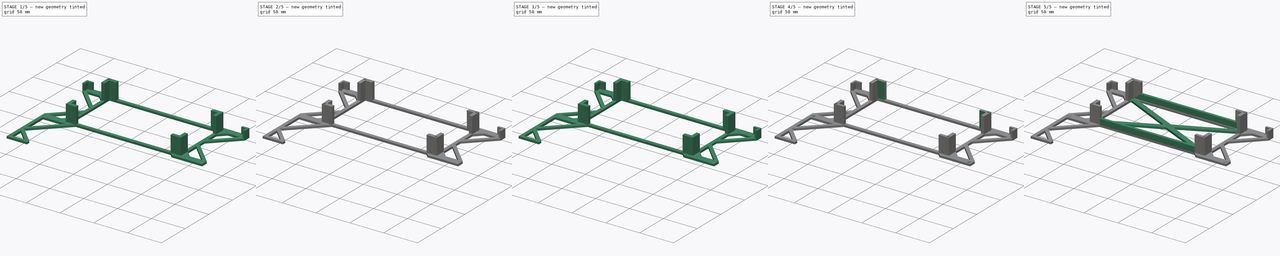
[diagram: build sequence overview — one tinted view per stage of 5, left to right]
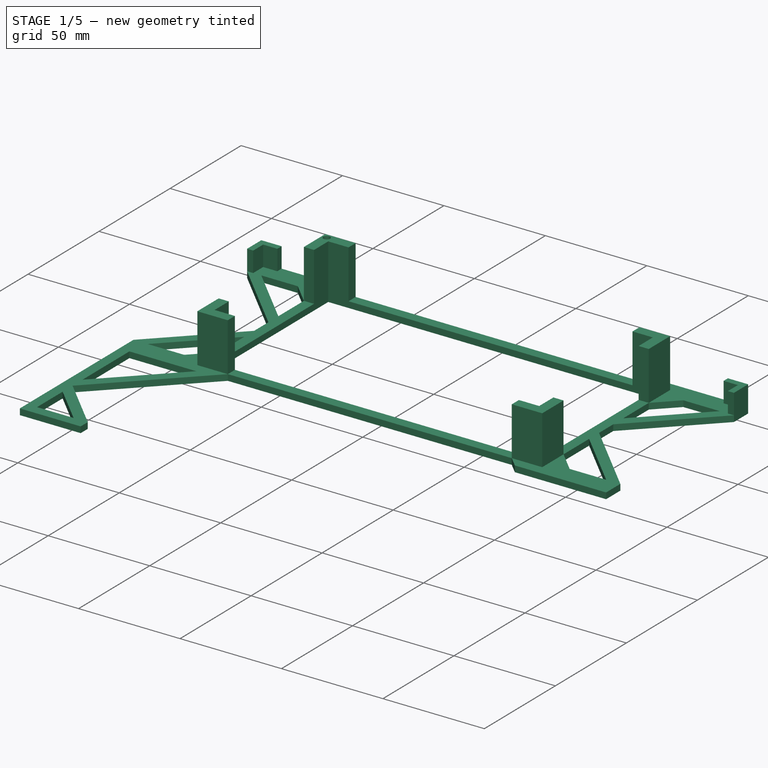
[diagram: stage 1 of 5 — iso view after this stage's code; geometry added in this stage tinted green]
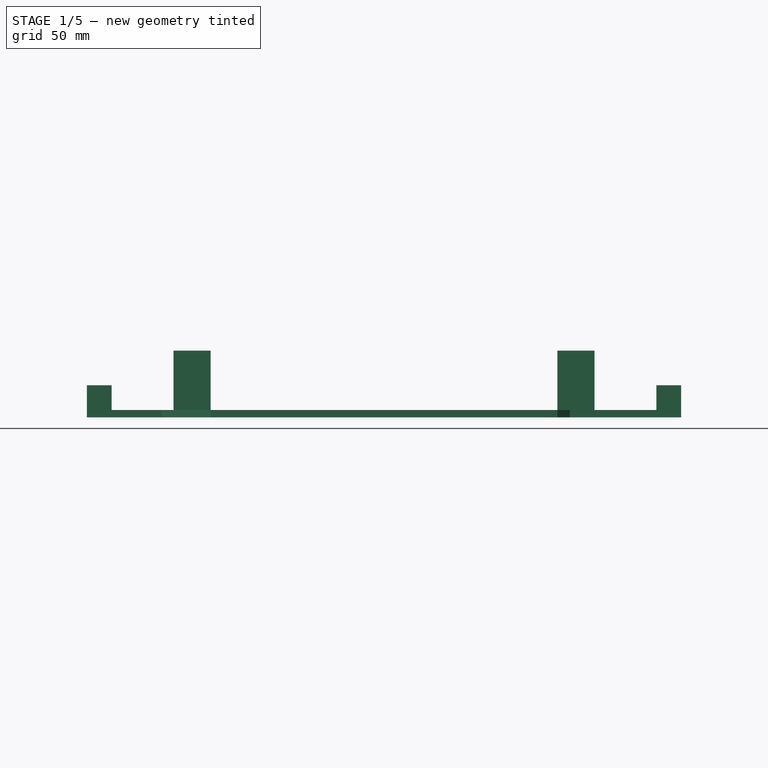
[diagram: stage 1 of 5 — front view after this stage's code; geometry added in this stage tinted green]
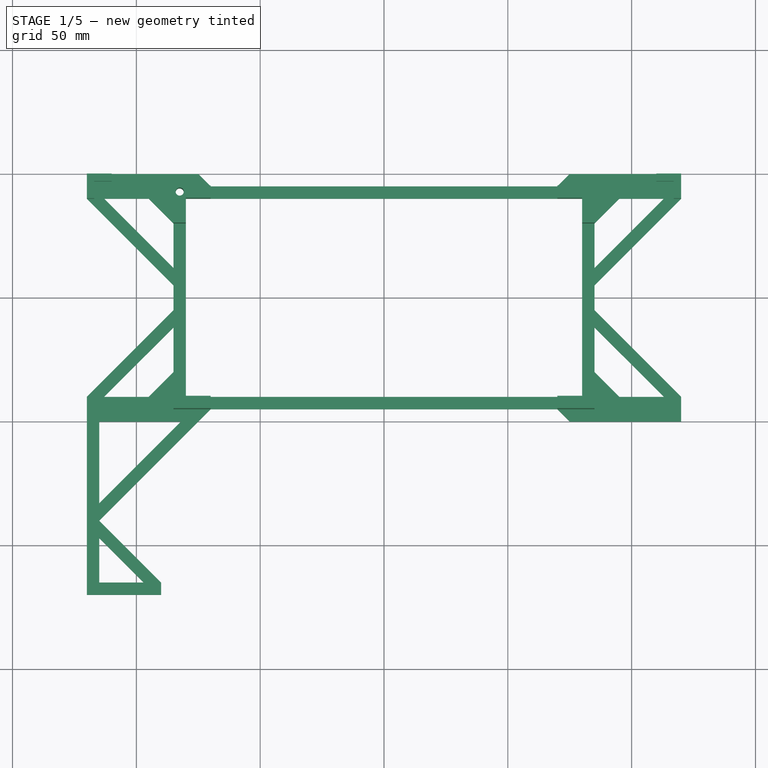
[diagram: stage 1 of 5 — top view after this stage's code; geometry added in this stage tinted green]
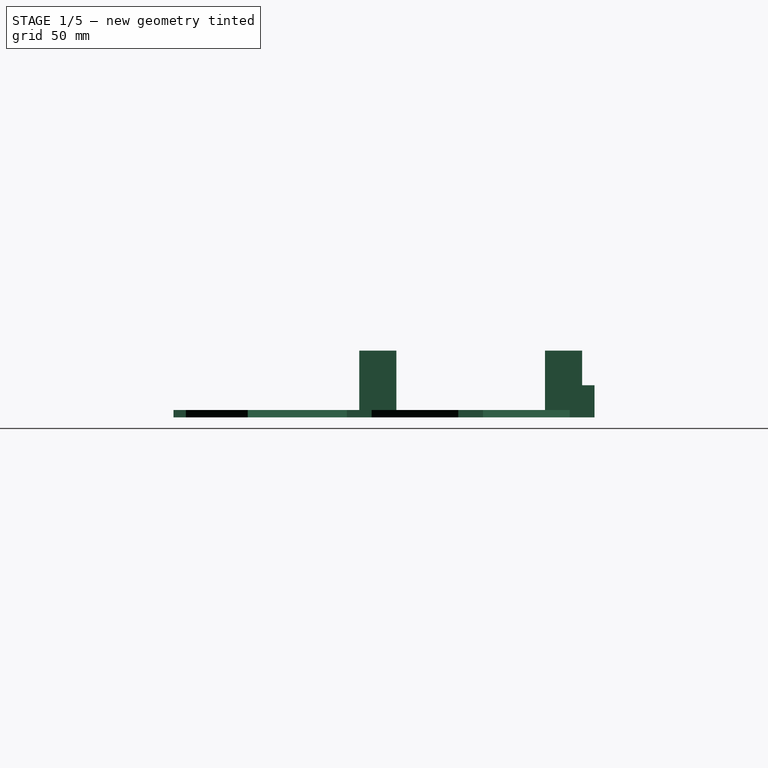
[diagram: stage 1 of 5 — right view after this stage's code; geometry added in this stage tinted green]
FCSTD DOCUMENT  (FreeCAD 0.18R4 (GitTag))
Label: Box_frame_bottom_V3
License: All rights reserved
LicenseURL: http://en.wikipedia.org/wiki/All_rights_reserved
objects: Sketcher::SketchObject×29, PartDesign::Fillet×17, PartDesign::Pad×14, PartDesign::Pocket×8, PartDesign::Hole×4, PartDesign::Body×2, PartDesign::Chamfer×1
note: 101 computed .brp shape members not serialized (recipe doc carries the construction recipe); baked Part::Feature solids carry a one-line shape summary decoded from their .brp

FEATURE [Sketcher::SketchObject] Sketch001
  MapMode = 2
  sketch-geometry (58):
    g0: LineSegment StartX=-80 StartY=40 StartZ=0 EndX=80 EndY=40 EndZ=0
    g1: LineSegment StartX=80 StartY=40 StartZ=0 EndX=80 EndY=-40 EndZ=0
    g2: LineSegment StartX=80 StartY=-40 StartZ=0 EndX=-80 EndY=-40 EndZ=0
    g3: LineSegment StartX=-80 StartY=-40 StartZ=0 EndX=-80 EndY=40 EndZ=0
    g4: LineSegment StartX=-85 StartY=45 StartZ=0 EndX=85 EndY=45 EndZ=0
    g5: LineSegment StartX=85 StartY=45 StartZ=0 EndX=85 EndY=-45 EndZ=0
    g6: LineSegment StartX=85 StartY=-45 StartZ=0 EndX=-85 EndY=-45 EndZ=0
    g7: LineSegment StartX=-85 StartY=-45 StartZ=0 EndX=-85 EndY=45 EndZ=0
    g8: LineSegment StartX=-70 StartY=45 StartZ=0 EndX=-75 EndY=50 EndZ=0
    g9: LineSegment StartX=-120 StartY=50 StartZ=0 EndX=-75 EndY=50 EndZ=0
    g10: LineSegment StartX=-120 StartY=50 StartZ=0 EndX=-120 EndY=40 EndZ=0
    g11: LineSegment StartX=-120 StartY=40 StartZ=0 EndX=-85 EndY=5 EndZ=0
    g12: LineSegment StartX=-113 StartY=40 StartZ=0 EndX=-95 EndY=40 EndZ=0
    g13: LineSegment StartX=-113 StartY=40 StartZ=0 EndX=-85 EndY=12 EndZ=0
    g14: LineSegment StartX=-95 StartY=40 StartZ=0 EndX=-85 EndY=30 EndZ=0
    g15: LineSegment StartX=-85 StartY=30 StartZ=0 EndX=-80 EndY=30 EndZ=0
    g16: LineSegment StartX=-70 StartY=45 StartZ=0 EndX=-70 EndY=40 EndZ=0
    g17: Circle CenterX=-82.5 CenterY=42.5 CenterZ=0 NormalX=0 NormalY=0 NormalZ=1 AngleXU=0 Radius=0.9
    g18: LineSegment StartX=70 StartY=45 StartZ=0 EndX=75 EndY=50 EndZ=0
    g19: LineSegment StartX=120 StartY=50 StartZ=0 EndX=75 EndY=50 EndZ=0
    g20: LineSegment StartX=120 StartY=50 StartZ=0 EndX=120 EndY=40 EndZ=0
    g21: LineSegment StartX=120 StartY=40 StartZ=0 EndX=85 EndY=5 EndZ=0
    g22: LineSegment StartX=113 StartY=40 StartZ=0 EndX=95 EndY=40 EndZ=0
    g23: LineSegment StartX=113 StartY=40 StartZ=0 EndX=85 EndY=12 EndZ=0
    g24: LineSegment StartX=95 StartY=40 StartZ=0 EndX=85 EndY=30 EndZ=0
    g25: LineSegment StartX=85 StartY=30 StartZ=0 EndX=80 EndY=30 EndZ=0
    g26: LineSegment StartX=70 StartY=45 StartZ=0 EndX=70 EndY=40 EndZ=0
    g27: Circle CenterX=82.5 CenterY=42.5 CenterZ=0 NormalX=0 NormalY=0 NormalZ=1 AngleXU=0 Radius=0.9
    g28: LineSegment StartX=70 StartY=-45 StartZ=0 EndX=75 EndY=-50 EndZ=0
    g29: LineSegment StartX=120 StartY=-50 StartZ=0 EndX=75 EndY=-50 EndZ=0
    g30: LineSegment StartX=120 StartY=-50 StartZ=0 EndX=120 EndY=-40 EndZ=0
    g31: LineSegment StartX=120 StartY=-40 StartZ=0 EndX=85 EndY=-5 EndZ=0
    g32: LineSegment StartX=113 StartY=-40 StartZ=0 EndX=95 EndY=-40 EndZ=0
    g33: LineSegment StartX=113 StartY=-40 StartZ=0 EndX=85 EndY=-12 EndZ=0
    g34: LineSegment StartX=95 StartY=-40 StartZ=0 EndX=85 EndY=-30 EndZ=0
    g35: LineSegment StartX=85 StartY=-30 StartZ=0 EndX=80 EndY=-30 EndZ=0
    g36: LineSegment StartX=70 StartY=-45 StartZ=0 EndX=70 EndY=-40 EndZ=0
    g37: Circle CenterX=82.5 CenterY=-42.5 CenterZ=0 NormalX=0 NormalY=0 NormalZ=1 AngleXU=0 Radius=0.9
    g38: LineSegment StartX=-70 StartY=-45 StartZ=0 EndX=-75 EndY=-50 EndZ=0
    g39: LineSegment StartX=-120 StartY=-50 StartZ=0 EndX=-75 EndY=-50 EndZ=0
    g40: LineSegment StartX=-120 StartY=-50 StartZ=0 EndX=-120 EndY=-40 EndZ=0
    g41: LineSegment StartX=-120 StartY=-40 StartZ=0 EndX=-85 EndY=-5 EndZ=0
    g42: LineSegment StartX=-113 StartY=-40 StartZ=0 EndX=-95 EndY=-40 EndZ=0
    g43: LineSegment StartX=-113 StartY=-40 StartZ=0 EndX=-85 EndY=-12 EndZ=0
    g44: LineSegment StartX=-95 StartY=-40 StartZ=0 EndX=-85 EndY=-30 EndZ=0
    g45: LineSegment StartX=-85 StartY=-30 StartZ=0 EndX=-80 EndY=-30 EndZ=0
    g46: LineSegment StartX=-70 StartY=-45 StartZ=0 EndX=-70 EndY=-40 EndZ=0
    g47: Circle CenterX=-82.5 CenterY=-42.5 CenterZ=0 NormalX=0 NormalY=0 NormalZ=1 AngleXU=0 Radius=0.9
    g48: LineSegment StartX=-120 StartY=-50 StartZ=0 EndX=-120 EndY=-120 EndZ=0
    g49: LineSegment StartX=-120 StartY=-120 StartZ=0 EndX=-90 EndY=-120 EndZ=0
    g50: LineSegment StartX=-90 StartY=-120 StartZ=0 EndX=-90 EndY=-115 EndZ=0
    g51: LineSegment StartX=-90 StartY=-115 StartZ=0 EndX=-115 EndY=-90 EndZ=0
    g52: LineSegment StartX=-115 StartY=-90 StartZ=0 EndX=-75 EndY=-50 EndZ=0
    g53: LineSegment StartX=-115 StartY=-50 StartZ=0 EndX=-115 EndY=-83 EndZ=0
    g54: LineSegment StartX=-115 StartY=-97 StartZ=0 EndX=-115 EndY=-115 EndZ=0
    g55: LineSegment StartX=-115 StartY=-115 StartZ=0 EndX=-97 EndY=-115 EndZ=0
    g56: LineSegment StartX=-97 StartY=-115 StartZ=0 EndX=-115 EndY=-97 EndZ=0
    g57: LineSegment StartX=-115 StartY=-83 StartZ=0 EndX=-82 EndY=-50 EndZ=0
  constraints (182):
    c: Coincident(g0,g1)
    c: Coincident(g1,g2)
    c: Coincident(g2,g3)
    c: Coincident(g3,g0)
    c: Horizontal(g0)
    c: Horizontal(g2)
    c: Vertical(g1)
    c: Vertical(g3)
    c: DistanceX(g0,g0) = 160
    c: DistanceY(g3,g3) = 80
    c: Distance(g-1,g1) = 80
    c: Distance(g-1,g0) = 40
    c: Coincident(g4,g5)
    c: Coincident(g5,g6)
    c: Coincident(g6,g7)
    c: Coincident(g7,g4)
    c: Horizontal(g4)
    c: Horizontal(g6)
    c: Vertical(g5)
    c: Vertical(g7)
    c: DistanceX(g6,g5) = 170
    c: DistanceY(g5,g4) = 90
    c: Distance(g-1,g5) = 85
    c: Distance(g-1,g4) = 45
    c: PointOnObject(g8,g4)
    c: Coincident(g8,g9)
    c: DistanceY(g4,g8) = 5
    c: DistanceX(g8,g8) = 5
    c: DistanceX(g9,g4) = 35
    c: DistanceX(g4,g8) = 15
    c: DistanceY(g4,g9) = 5
    c: Coincident(g9,g10)
    c: DistanceY(g10,g9) = 10
    c: DistanceX(g10,g4) = 35
    c: Coincident(g11,g10)
    c: PointOnObject(g11,g7)
    c: DistanceY(g11,g4) = 40
    c: DistanceY(g12,g8) = 10
    c: Parallel(g9,g12)
    c: DistanceX(g12,g4) = 10
    c: DistanceX(g10,g12) = 7
    c: Coincident(g13,g12)
    c: Coincident(g14,g12)
    c: PointOnObject(g14,g7)
    c: PointOnObject(g13,g7)
    c: DistanceY(g11,g13) = 7
    c: DistanceY(g14,g12) = 10
    c: Coincident(g15,g14)
    c: PointOnObject(g15,g3)
    c: DistanceY(g15,g0) = 10
    c: Coincident(g16,g8)
    c: DistanceX(g0,g16) = 10
    c: PointOnObject(g16,g0)
    c: DistanceX(g4,g17) = 2.5
    c: DistanceY(g0,g17) = 2.5
    c: Radius(g17) = 0.9  'ra'
    c: Coincident(g18,g19)
    c: Coincident(g19,g20)
    c: Coincident(g21,g20)
    c: Parallel(g19,g22)
    c: Coincident(g23,g22)
    c: Coincident(g24,g22)
    c: Coincident(g25,g24)
    c: Coincident(g26,g18)
    c: Radius(g27) = 0.9  'ra'
    c: PointOnObject(g26,g0)
    c: PointOnObject(g18,g4)
    c: DistanceX(g18,g4) = 15
    c: DistanceX(g26,g0) = 10
    c: DistanceX(g18,g4) = 10
    c: DistanceX(g4,g19) = 35
    c: DistanceX(g4,g22) = 10
    c: DistanceX(g4,g22) = 28
    c: DistanceX(g0,g24) = 5
    c: DistanceY(g24,g0) = 10
    c: DistanceY(g25,g0) = 10
    c: DistanceY(g23,g0) = 28
    c: DistanceY(g21,g0) = 35
    c: DistanceY(g20,g19) = 10
    c: DistanceY(g22,g19) = 10
    c: DistanceY(g4,g18) = 5
    c: DistanceY(g22,g18) = 10
    c: PointOnObject(g25,g1)
    c: PointOnObject(g23,g5)
    c: PointOnObject(g21,g5)
    c: DistanceX(g4,g20) = 35
    c: DistanceX(g27,g4) = 2.5
    c: DistanceY(g0,g27) = 2.5
    c: Coincident(g28,g29)
    c: Coincident(g29,g30)
    c: Coincident(g31,g30)
    c: Parallel(g29,g32)
    c: Coincident(g33,g32)
    c: Coincident(g34,g32)
    c: Coincident(g35,g34)
    c: Coincident(g36,g28)
    c: Radius(g37) = 0.9  'ra'
    c: PointOnObject(g31,g5)
    c: PointOnObject(g33,g5)
    c: PointOnObject(g34,g5)
    c: PointOnObject(g35,g1)
    c: PointOnObject(g36,g2)
    c: PointOnObject(g28,g6)
    c: DistanceX(g5,g32) = 10
    c: DistanceX(g5,g32) = 28
    c: DistanceX(g5,g30) = 35
    c: DistanceX(g5,g29) = 35
    c: DistanceX(g28,g5) = 10
    c: DistanceX(g28,g5) = 15
    c: DistanceX(g36,g5) = 15
    c: DistanceY(g28,g5) = 5
    c: DistanceY(g5,g32) = 5
    c: DistanceY(g5,g34) = 15
    c: DistanceY(g5,g35) = 15
    c: DistanceY(g5,g33) = 33
    c: DistanceY(g5,g31) = 40
    c: DistanceY(g5,g32) = 5
    c: DistanceY(g5,g30) = 5
    c: DistanceY(g5,g37) = 2.5
    c: DistanceX(g1,g37) = 2.5
    c: Coincident(g38,g39)
    c: Coincident(g39,g40)
    c: Coincident(g41,g40)
    c: Parallel(g39,g42)
    c: Coincident(g43,g42)
    c: Coincident(g44,g42)
    c: Coincident(g45,g44)
    c: Coincident(g46,g38)
    c: Radius(g47) = 0.9  'ra'
    c: PointOnObject(g41,g7)
    c: PointOnObject(g43,g7)
    c: PointOnObject(g44,g7)
    c: PointOnObject(g45,g3)
    c: PointOnObject(g46,g2)
    c: PointOnObject(g38,g6)
    c: DistanceX(g6,g38) = 15
    c: DistanceX(g6,g46) = 15
    c: DistanceX(g6,g38) = 10
    c: DistanceX(g39,g6) = 35
    c: DistanceX(g42,g6) = 10
    c: DistanceX(g42,g6) = 28
    c: DistanceX(g40,g6) = 35
    c: DistanceY(g6,g44) = 15
    c: DistanceY(g6,g45) = 15
    c: DistanceY(g6,g41) = 40
    c: DistanceY(g6,g43) = 33
    c: DistanceY(g6,g42) = 5
    c: DistanceY(g39,g2) = 10
    c: DistanceY(g6,g40) = 5
    c: DistanceY(g6,g47) = 2.5
    c: DistanceY(g38,g6) = 5
    c: DistanceX(g47,g2) = 2.5
    c: Coincident(g48,g39)
    c: DistanceY(g48,g39) = 70
    c: DistanceX(g48,g6) = 35
    c: Coincident(g49,g48)
    c: DistanceX(g48,g49) = 30
    c: DistanceY(g49,g6) = 75
    c: Coincident(g50,g49)
    c: Coincident(g50,g51)
    c: Coincident(g51,g52)
    c: Coincident(g52,g38)
    c: DistanceX(g48,g50) = 30
    c: DistanceY(g49,g50) = 5
    c: DistanceY(g48,g51) = 30
    c: DistanceX(g48,g51) = 5
    c: Coincident(g54,g55)
    c: Coincident(g55,g56)
    c: Coincident(g54,g56)
    c: Parallel(g48,g53)
    c: Parallel(g54,g48)
    c: Parallel(g56,g51)
    c: Parallel(g55,g49)
    c: DistanceX(g39,g53) = 5
    c: DistanceX(g48,g54) = 5
    c: DistanceX(g55,g49) = 7
    c: DistanceY(g51,g53) = 7
    c: DistanceY(g49,g55) = 5
    c: PointOnObject(g53,g39)
    c: PointOnObject(g57,g39)
    c: Coincident(g57,g53)
    c: DistanceX(g57,g38) = 7
FEATURE [Sketcher::SketchObject] Sketch002
  MapMode = 5
  Support = -> [XY_Plane001]
FEATURE [Sketcher::SketchObject] Sketch003
  MapMode = 5
  Support = -> [XY_Plane]
  sketch-geometry (8):
    g0: LineSegment StartX=-80 StartY=40 StartZ=0 EndX=80 EndY=40 EndZ=0
    g1: LineSegment StartX=80 StartY=40 StartZ=0 EndX=80 EndY=-40 EndZ=0
    g2: LineSegment StartX=80 StartY=-40 StartZ=0 EndX=-80 EndY=-40 EndZ=0
    g3: LineSegment StartX=-80 StartY=-40 StartZ=0 EndX=-80 EndY=40 EndZ=0
    g4: LineSegment StartX=-85 StartY=45 StartZ=0 EndX=85 EndY=45 EndZ=0
    g5: LineSegment StartX=85 StartY=45 StartZ=0 EndX=85 EndY=-45 EndZ=0
    g6: LineSegment StartX=85 StartY=-45 StartZ=0 EndX=-85 EndY=-45 EndZ=0
    g7: LineSegment StartX=-85 StartY=-45 StartZ=0 EndX=-85 EndY=45 EndZ=0
  constraints (24):
    c: Coincident(g0,g1)
    c: Coincident(g1,g2)
    c: Coincident(g2,g3)
    c: Coincident(g3,g0)
    c: Horizontal(g0)
    c: Horizontal(g2)
    c: Vertical(g1)
    c: Vertical(g3)
    c: Coincident(g4,g5)
    c: Coincident(g5,g6)
    c: Coincident(g6,g7)
    c: Coincident(g7,g4)
    c: Horizontal(g4)
    c: Horizontal(g6)
    c: Vertical(g5)
    c: Vertical(g7)
    c: DistanceX(g-1,g1) = 80
    c: DistanceX(g0,g0) = 160
    c: DistanceY(g1,g-1) = 40
    c: DistanceY(g1,g0) = 80
    c: DistanceY(g-1,g4) = 45
    c: DistanceY(g6,g4) = 90
    c: DistanceX(g6,g-1) = 85
    c: DistanceX(g-1,g5) = 85
FEATURE [PartDesign::Pad] Pad
  Length = 3
  Length2 = 100
  Profile = -> Sketch003
  Type = 0
FEATURE [Sketcher::SketchObject] Sketch005
  sketch-geometry (10):
    g0: LineSegment StartX=-70 StartY=45 StartZ=0 EndX=-75 EndY=50 EndZ=0
    g1: LineSegment StartX=-120 StartY=50 StartZ=0 EndX=-75 EndY=50 EndZ=0
    g2: LineSegment StartX=-120 StartY=50 StartZ=0 EndX=-120 EndY=40 EndZ=0
    g3: LineSegment StartX=-120 StartY=40 StartZ=0 EndX=-85 EndY=5 EndZ=0
    g4: LineSegment StartX=-113 StartY=40 StartZ=0 EndX=-95 EndY=40 EndZ=0
    g5: LineSegment StartX=-113 StartY=40 StartZ=0 EndX=-85 EndY=12 EndZ=0
    g6: LineSegment StartX=-95 StartY=40 StartZ=0 EndX=-85 EndY=30 EndZ=0
    g7: LineSegment StartX=-85 StartY=12 StartZ=0 EndX=-85 EndY=5 EndZ=0
    g8: LineSegment StartX=-85 StartY=30 StartZ=0 EndX=-85 EndY=45 EndZ=0
    g9: LineSegment StartX=-85 StartY=45 StartZ=0 EndX=-70 EndY=45 EndZ=0
  constraints (30):
    c: Coincident(g0,g1)
    c: DistanceX(g0,g0) = 5
    c: Coincident(g1,g2)
    c: DistanceY(g2,g1) = 10
    c: Coincident(g3,g2)
    c: DistanceY(g4,g0) = 10
    c: Parallel(g1,g4)
    c: DistanceX(g2,g4) = 7
    c: Coincident(g5,g4)
    c: Coincident(g6,g4)
    c: DistanceY(g3,g5) = 7
    c: DistanceY(g6,g4) = 10
    c: Coincident(g8,g9)
    c: Coincident(g9,g0)
    c: Coincident(g8,g6)
    c: Coincident(g5,g7)
    c: Coincident(g3,g7)
    c: DistanceX(g4,g6) = 10
    c: DistanceX(g2,g8) = 35
    c: DistanceX(g8,g0) = 15
    c: DistanceX(g2,g4) = 25
    c: DistanceX(g1,g-1) = 120
    c: DistanceX(g2,g-1) = 120
    c: DistanceY(g-1,g1) = 50
    c: DistanceY(g-1,g0) = 50
    c: DistanceY(g-1,g3) = 5
    c: DistanceX(g5,g-1) = 85
    c: DistanceX(g3,g-1) = 85
    c: DistanceY(g8,g0) = 5
    c: DistanceY(g0,g0) = 5
FEATURE [PartDesign::Pad] Pad001
  BaseFeature = -> Pad
  Length = 3
  Length2 = 100
  Profile = -> Sketch005
  Type = 0
FEATURE [Sketcher::SketchObject] Sketch007
  MapMode = 2
  sketch-geometry (10):
    g0: LineSegment StartX=70 StartY=45 StartZ=0 EndX=75 EndY=50 EndZ=0
    g1: LineSegment StartX=120 StartY=50 StartZ=0 EndX=75 EndY=50 EndZ=0
    g2: LineSegment StartX=120 StartY=50 StartZ=0 EndX=120 EndY=40 EndZ=0
    g3: LineSegment StartX=120 StartY=40 StartZ=0 EndX=85 EndY=5 EndZ=0
    g4: LineSegment StartX=113 StartY=40 StartZ=0 EndX=95 EndY=40 EndZ=0
    g5: LineSegment StartX=113 StartY=40 StartZ=0 EndX=85 EndY=12 EndZ=0
    g6: LineSegment StartX=95 StartY=40 StartZ=0 EndX=85 EndY=30 EndZ=0
    g7: LineSegment StartX=70 StartY=45 StartZ=0 EndX=85 EndY=45 EndZ=0
    g8: LineSegment StartX=85 StartY=45 StartZ=0 EndX=85 EndY=30 EndZ=0
    g9: LineSegment StartX=85 StartY=12 StartZ=0 EndX=85 EndY=5 EndZ=0
  constraints (30):
    c: Coincident(g0,g1)
    c: Coincident(g1,g2)
    c: Coincident(g3,g2)
    c: Parallel(g1,g4)
    c: Coincident(g5,g4)
    c: Coincident(g6,g4)
    c: DistanceY(g2,g1) = 10
    c: DistanceY(g4,g1) = 10
    c: DistanceY(g4,g0) = 10
    c: Coincident(g7,g8)
    c: Coincident(g6,g8)
    c: Coincident(g0,g7)
    c: Coincident(g5,g9)
    c: Coincident(g3,g9)
    c: DistanceY(g-1,g1) = 50
    c: DistanceX(g-1,g1) = 120
    c: DistanceX(g0,g1) = 45
    c: DistanceX(g6,g1) = 35
    c: DistanceX(g4,g1) = 25
    c: DistanceX(g4,g1) = 7
    c: DistanceX(g5,g1) = 35
    c: DistanceX(g3,g1) = 35
    c: DistanceX(g0,g1) = 50
    c: DistanceX(g7,g1) = 35
    c: DistanceY(g7,g0) = 5
    c: DistanceY(g0,g0) = 5
    c: DistanceY(g5,g4) = 28
    c: DistanceY(g3,g4) = 35
    c: DistanceY(g5,g6) = 18
    c: DistanceX(g4,g2) = 7
FEATURE [PartDesign::Pad] Pad002
  BaseFeature = -> Pad001
  Length = 3
  Length2 = 100
  Profile = -> Sketch007
  Type = 0
FEATURE [Sketcher::SketchObject] Sketch008
  MapMode = 2
  sketch-geometry (10):
    g0: LineSegment StartX=70 StartY=-45 StartZ=0 EndX=75 EndY=-50 EndZ=0
    g1: LineSegment StartX=120 StartY=-50 StartZ=0 EndX=75 EndY=-50 EndZ=0
    g2: LineSegment StartX=120 StartY=-50 StartZ=0 EndX=120 EndY=-40 EndZ=0
    g3: LineSegment StartX=120 StartY=-40 StartZ=0 EndX=85 EndY=-5 EndZ=0
    g4: LineSegment StartX=113 StartY=-40 StartZ=0 EndX=95 EndY=-40 EndZ=0
    g5: LineSegment StartX=113 StartY=-40 StartZ=0 EndX=85 EndY=-12 EndZ=0
    g6: LineSegment StartX=95 StartY=-40 StartZ=0 EndX=85 EndY=-30 EndZ=0
    g7: LineSegment StartX=70 StartY=-45 StartZ=0 EndX=85 EndY=-45 EndZ=0
    g8: LineSegment StartX=85 StartY=-45 StartZ=0 EndX=85 EndY=-30 EndZ=0
    g9: LineSegment StartX=85 StartY=-12 StartZ=0 EndX=85 EndY=-5 EndZ=0
  constraints (30):
    c: Coincident(g0,g1)
    c: Coincident(g1,g2)
    c: Coincident(g3,g2)
    c: Parallel(g1,g4)
    c: Coincident(g5,g4)
    c: Coincident(g6,g4)
    c: Coincident(g7,g8)
    c: Coincident(g3,g9)
    c: Coincident(g5,g9)
    c: Coincident(g6,g8)
    c: Coincident(g0,g7)
    c: DistanceX(g-1,g3) = 85
    c: DistanceY(g3,g-1) = 5
    c: DistanceY(g5,g3) = 7
    c: DistanceY(g6,g3) = 25
    c: DistanceY(g7,g3) = 40
    c: DistanceY(g0,g3) = 45
    c: DistanceY(g0,g3) = 40
    c: DistanceY(g1,g3) = 45
    c: DistanceY(g2,g3) = 35
    c: DistanceY(g4,g3) = 35
    c: DistanceX(g-1,g0) = 70
    c: DistanceX(g0,g7) = 15
    c: DistanceX(g0,g6) = 15
    c: DistanceX(g0,g4) = 25
    c: DistanceX(g0,g0) = 5
    c: DistanceX(g0,g1) = 50
    c: DistanceX(g0,g4) = 43
    c: DistanceX(g0,g2) = 50
    c: DistanceX(g0,g5) = 15
FEATURE [PartDesign::Pad] Pad003
  BaseFeature = -> Pad002
  Length = 3
  Length2 = 100
  Profile = -> Sketch008
  Type = 0
FEATURE [Sketcher::SketchObject] Sketch009
  MapMode = 2
  sketch-geometry (20):
    g0: LineSegment StartX=-70 StartY=-45 StartZ=0 EndX=-75 EndY=-50 EndZ=0
    g1: LineSegment StartX=-120 StartY=-50 StartZ=0 EndX=-120 EndY=-40 EndZ=0
    g2: LineSegment StartX=-120 StartY=-40 StartZ=0 EndX=-85 EndY=-5 EndZ=0
    g3: LineSegment StartX=-113 StartY=-40 StartZ=0 EndX=-95 EndY=-40 EndZ=0
    g4: LineSegment StartX=-113 StartY=-40 StartZ=0 EndX=-85 EndY=-12 EndZ=0
    g5: LineSegment StartX=-95 StartY=-40 StartZ=0 EndX=-85 EndY=-30 EndZ=0
    g6: LineSegment StartX=-120 StartY=-50 StartZ=0 EndX=-120 EndY=-120 EndZ=0
    g7: LineSegment StartX=-120 StartY=-120 StartZ=0 EndX=-90 EndY=-120 EndZ=0
    g8: LineSegment StartX=-90 StartY=-120 StartZ=0 EndX=-90 EndY=-115 EndZ=0
    g9: LineSegment StartX=-90 StartY=-115 StartZ=0 EndX=-115 EndY=-90 EndZ=0
    g10: LineSegment StartX=-115 StartY=-90 StartZ=0 EndX=-75 EndY=-50 EndZ=0
    g11: LineSegment StartX=-115 StartY=-50 StartZ=0 EndX=-115 EndY=-83 EndZ=0
    g12: LineSegment StartX=-115 StartY=-97 StartZ=0 EndX=-115 EndY=-115 EndZ=0
    g13: LineSegment StartX=-115 StartY=-115 StartZ=0 EndX=-97 EndY=-115 EndZ=0
    g14: LineSegment StartX=-97 StartY=-115 StartZ=0 EndX=-115 EndY=-97 EndZ=0
    g15: LineSegment StartX=-115 StartY=-83 StartZ=0 EndX=-82 EndY=-50 EndZ=0
    g16: LineSegment StartX=-85 StartY=-5 StartZ=0 EndX=-85 EndY=-12 EndZ=0
    g17: LineSegment StartX=-85 StartY=-30 StartZ=0 EndX=-85 EndY=-45 EndZ=0
    g18: LineSegment StartX=-85 StartY=-45 StartZ=0 EndX=-70 EndY=-45 EndZ=0
    g19: LineSegment StartX=-115 StartY=-50 StartZ=0 EndX=-82 EndY=-50 EndZ=0
  constraints (60):
    c: Coincident(g2,g1)
    c: Coincident(g4,g3)
    c: Coincident(g5,g3)
    c: DistanceY(g6,g1) = 70
    c: Coincident(g7,g6)
    c: DistanceX(g6,g7) = 30
    c: Coincident(g8,g7)
    c: Coincident(g8,g9)
    c: Coincident(g9,g10)
    c: Coincident(g10,g0)
    c: DistanceX(g6,g8) = 30
    c: DistanceY(g7,g8) = 5
    c: DistanceY(g6,g9) = 30
    c: DistanceX(g6,g9) = 5
    c: Coincident(g12,g13)
    c: Coincident(g13,g14)
    c: Coincident(g12,g14)
    c: Parallel(g6,g11)
    c: Parallel(g12,g6)
    c: Parallel(g14,g9)
    c: Parallel(g13,g7)
    c: DistanceX(g1,g11) = 5
    c: DistanceX(g6,g12) = 5
    c: DistanceX(g13,g7) = 7
    c: DistanceY(g9,g11) = 7
    c: DistanceY(g7,g13) = 5
    c: Coincident(g15,g11)
    c: Coincident(g17,g18)
    c: Coincident(g2,g16)
    c: Coincident(g4,g16)
    c: Coincident(g5,g17)
    c: Coincident(g0,g18)
    c: Coincident(g15,g19)
    c: Coincident(g11,g19)
    c: DistanceX(g2,g-1) = 85
    c: DistanceX(g4,g-1) = 85
    c: DistanceX(g1,g-1) = 120
    c: DistanceX(g3,g-1) = 113
    c: DistanceX(g3,g-1) = 95
    c: DistanceX(g5,g-1) = 85
    c: DistanceX(g17,g-1) = 85
    c: DistanceX(g0,g-1) = 70
    c: DistanceX(g0,g-1) = 75
    c: DistanceX(g15,g-1) = 82
    c: DistanceX(g11,g-1) = 115
    c: DistanceX(g1,g-1) = 120
    c: DistanceY(g7,g-1) = 120
    c: DistanceY(g9,g-1) = 90
    c: DistanceY(g2,g-1) = 5
    c: DistanceY(g5,g-1) = 30
    c: DistanceY(g3,g-1) = 40
    c: DistanceY(g0,g-1) = 45
    c: DistanceY(g15,g-1) = 50
    c: DistanceY(g0,g-1) = 50
    c: DistanceY(g1,g-1) = 40
    c: DistanceY(g11,g1) = 10
    c: DistanceY(g4,g2) = 7
    c: DistanceY(g3,g2) = 35
    c: DistanceY(g17,g2) = 40
    c: Coincident(g6,g1)
FEATURE [PartDesign::Pad] Pad004
  BaseFeature = -> Pad003
  Length = 3
  Length2 = 100
  Profile = -> Sketch009
  Type = 0
FEATURE [Sketcher::SketchObject] Sketch011
  MapMode = 5
  Placement = pos=(0,0,3) rot=(0,0,1;0rad)
  Support = -> [Pad004]
  sketch-geometry (6):
    g0: LineSegment StartX=-120 StartY=50 StartZ=0 EndX=-120 EndY=40 EndZ=0
    g1: LineSegment StartX=-120 StartY=40 StartZ=0 EndX=-117 EndY=40 EndZ=0
    g2: LineSegment StartX=-117 StartY=40 StartZ=0 EndX=-117 EndY=47 EndZ=0
    g3: LineSegment StartX=-117 StartY=47 StartZ=0 EndX=-110 EndY=47 EndZ=0
    g4: LineSegment StartX=-110 StartY=47 StartZ=0 EndX=-110 EndY=50 EndZ=0
    g5: LineSegment StartX=-110 StartY=50 StartZ=0 EndX=-120 EndY=50 EndZ=0
  constraints (18):
    c: Coincident(g0,g1)
    c: Coincident(g1,g2)
    c: Coincident(g2,g3)
    c: Coincident(g3,g4)
    c: Coincident(g4,g5)
    c: Coincident(g5,g0)
    c: DistanceX(g0,g-1) = 120
    c: DistanceY(g-1,g0) = 50
    c: Parallel(g5,g-1)
    c: Parallel(g3,g-1)
    c: Parallel(g1,g-1)
    c: DistanceY(g3,g4) = 3
    c: DistanceX(g0,g1) = 3
    c: Parallel(g-2,g4)
    c: Parallel(g4,g0)
    c: Parallel(g4,g2)
    c: DistanceX(g0,g4) = 10
    c: DistanceY(g0,g0) = 10
FEATURE [PartDesign::Pad] Pad005
  BaseFeature = -> Pad004
  Length = 10
  Length2 = 100
  Profile = -> Sketch011
  Type = 0
FEATURE [Sketcher::SketchObject] Sketch012
  MapMode = 5
  Placement = pos=(0,0,3) rot=(0,0,1;0rad)
  Support = -> [Pad005]
  sketch-geometry (6):
    g0: LineSegment StartX=120 StartY=50 StartZ=0 EndX=110 EndY=50 EndZ=0
    g1: LineSegment StartX=110 StartY=50 StartZ=0 EndX=110 EndY=47 EndZ=0
    g2: LineSegment StartX=110 StartY=47 StartZ=0 EndX=117 EndY=47 EndZ=0
    g3: LineSegment StartX=117 StartY=47 StartZ=0 EndX=117 EndY=40 EndZ=0
    g4: LineSegment StartX=117 StartY=40 StartZ=0 EndX=120 EndY=40 EndZ=0
    g5: LineSegment StartX=120 StartY=40 StartZ=0 EndX=120 EndY=50 EndZ=0
  constraints (18):
    c: Coincident(g0,g1)
    c: Coincident(g1,g2)
    c: Coincident(g2,g3)
    c: Coincident(g3,g4)
    c: Coincident(g4,g5)
    c: Coincident(g5,g0)
    c: DistanceX(g-1,g0) = 120
    c: DistanceY(g-1,g0) = 50
    c: Horizontal(g0)
    c: Horizontal(g2)
    c: Horizontal(g4)
    c: Vertical(g1)
    c: Vertical(g3)
    c: Vertical(g5)
    c: DistanceX(g0,g0) = 10
    c: DistanceX(g3,g4) = 3
    c: DistanceY(g1,g0) = 3
    c: DistanceY(g4,g0) = 10
FEATURE [PartDesign::Pad] Pad006
  BaseFeature = -> Pad005
  Length = 10
  Length2 = 100
  Profile = -> Sketch012
  Type = 0
FEATURE [Sketcher::SketchObject] Sketch013
  MapMode = 5
  Placement = pos=(0,0,3) rot=(0,0,1;0rad)
  Support = -> [Pad006]
  sketch-geometry (24):
    g0: LineSegment StartX=-85 StartY=45 StartZ=0 EndX=-85 EndY=30 EndZ=0
    g1: LineSegment StartX=-85 StartY=30 StartZ=0 EndX=-80 EndY=30 EndZ=0
    g2: LineSegment StartX=-80 StartY=30 StartZ=0 EndX=-80 EndY=40 EndZ=0
    g3: LineSegment StartX=-80 StartY=40 StartZ=0 EndX=-70 EndY=40 EndZ=0
    g4: LineSegment StartX=-70 StartY=40 StartZ=0 EndX=-70 EndY=45 EndZ=0
    g5: LineSegment StartX=-70 StartY=45 StartZ=0 EndX=-85 EndY=45 EndZ=0
    g6: LineSegment StartX=85 StartY=45 StartZ=0 EndX=85 EndY=30 EndZ=0
    g7: LineSegment StartX=85 StartY=30 StartZ=0 EndX=80 EndY=30 EndZ=0
    g8: LineSegment StartX=80 StartY=30 StartZ=0 EndX=80 EndY=40 EndZ=0
    g9: LineSegment StartX=80 StartY=40 StartZ=0 EndX=70 EndY=40 EndZ=0
    g10: LineSegment StartX=70 StartY=40 StartZ=0 EndX=70 EndY=45 EndZ=0
    g11: LineSegment StartX=70 StartY=45 StartZ=0 EndX=85 EndY=45 EndZ=0
    g12: LineSegment StartX=85 StartY=-45 StartZ=0 EndX=85 EndY=-30 EndZ=0
    g13: LineSegment StartX=85 StartY=-30 StartZ=0 EndX=80 EndY=-30 EndZ=0
    g14: LineSegment StartX=80 StartY=-30 StartZ=0 EndX=80 EndY=-40 EndZ=0
    g15: LineSegment StartX=80 StartY=-40 StartZ=0 EndX=70 EndY=-40 EndZ=0
    g16: LineSegment StartX=70 StartY=-40 StartZ=0 EndX=70 EndY=-45 EndZ=0
    g17: LineSegment StartX=70 StartY=-45 StartZ=0 EndX=85 EndY=-45 EndZ=0
    g18: LineSegment StartX=-85 StartY=-45 StartZ=0 EndX=-85 EndY=-30 EndZ=0
    g19: LineSegment StartX=-85 StartY=-30 StartZ=0 EndX=-80 EndY=-30 EndZ=0
    g20: LineSegment StartX=-80 StartY=-30 StartZ=0 EndX=-80 EndY=-40 EndZ=0
    g21: LineSegment StartX=-80 StartY=-40 StartZ=0 EndX=-70 EndY=-40 EndZ=0
    g22: LineSegment StartX=-70 StartY=-40 StartZ=0 EndX=-70 EndY=-45 EndZ=0
    g23: LineSegment StartX=-70 StartY=-45 StartZ=0 EndX=-85 EndY=-45 EndZ=0
  constraints (72):
    c: Coincident(g0,g1)
    c: Coincident(g1,g2)
    c: Coincident(g2,g3)
    c: Coincident(g3,g4)
    c: Coincident(g4,g5)
    c: Coincident(g5,g0)
    c: DistanceX(g0,g-1) = 85
    c: DistanceY(g-1,g0) = 45
    c: Horizontal(g5)
    c: Horizontal(g3)
    c: Horizontal(g1)
    c: Vertical(g2)
    c: Vertical(g0)
    c: Vertical(g4)
    c: DistanceX(g0,g4) = 15
    c: DistanceX(g2,g3) = 10
    c: DistanceY(g3,g4) = 5
    c: DistanceY(g0,g0) = 15
    c: Coincident(g6,g7)
    c: Coincident(g7,g8)
    c: Coincident(g8,g9)
    c: Coincident(g9,g10)
    c: Coincident(g10,g11)
    c: Coincident(g11,g6)
    c: Horizontal(g11)
    c: Horizontal(g9)
    c: Horizontal(g7)
    c: Vertical(g8)
    c: Vertical(g6)
    c: Vertical(g10)
    c: DistanceX(g-1,g6) = 85
    c: DistanceY(g-1,g6) = 45
    c: DistanceY(g6,g6) = 15
    c: DistanceY(g9,g10) = 5
    c: DistanceX(g10,g6) = 15
    c: DistanceX(g7,g6) = 5
    c: Coincident(g12,g13)
    c: Coincident(g13,g14)
    c: Coincident(g14,g15)
    c: Coincident(g15,g16)
    c: Coincident(g16,g17)
    c: Coincident(g17,g12)
    c: Horizontal(g17)
    c: Horizontal(g15)
    c: Horizontal(g13)
    c: Vertical(g14)
    c: Vertical(g12)
    c: Vertical(g16)
    c: DistanceX(g-1,g12) = 85
    c: DistanceY(g12,g-1) = 45
    c: DistanceY(g16,g15) = 5
    c: DistanceY(g12,g12) = 15
    c: DistanceX(g13,g12) = 5
    c: DistanceX(g16,g12) = 15
    c: Coincident(g18,g19)
    c: Coincident(g19,g20)
    c: Coincident(g20,g21)
    c: Coincident(g21,g22)
    c: Coincident(g22,g23)
    c: Coincident(g23,g18)
    c: Horizontal(g23)
    c: Horizontal(g21)
    c: Horizontal(g19)
    c: Vertical(g20)
    c: Vertical(g18)
    c: Vertical(g22)
    c: DistanceX(g18,g-1) = 85
    c: DistanceY(g18,g-1) = 45
    c: DistanceY(g22,g21) = 5
    c: DistanceY(g18,g18) = 15
    c: DistanceX(g18,g19) = 5
    c: DistanceX(g18,g22) = 15
FEATURE [PartDesign::Pad] Pad007
  BaseFeature = -> Pad006
  Length = 24
  Length2 = 100
  Profile = -> Sketch013
  Type = 0
FEATURE [Sketcher::SketchObject] Sketch014
  MapMode = 5
  Placement = pos=(0,0,27) rot=(0,0,1;0rad)
  Support = -> [Pad007]
  sketch-geometry (1):
    g0: Circle CenterX=-82.5 CenterY=42.5 CenterZ=0 NormalX=0 NormalY=0 NormalZ=1 AngleXU=0 Radius=1.4
  constraints (3):
    c: DistanceX(g0,g-1) = 82.5
    c: DistanceY(g-1,g0) = 42.5
    c: Radius(g0) = 1.4
FEATURE [PartDesign::Hole] Hole
  BaseFeature = -> Pad007
  Depth = 30
  DepthType = 0
  Diameter = 3.3
  DrillPoint = 0
  DrillPointAngle = 118
  HoleCutCountersinkAngle = 90
  HoleCutDepth = 0
  HoleCutDiameter = 3
  HoleCutType = 0
  ModelActualThread = false
  Profile = -> Sketch014
  Tapered = false
  TaperedAngle = 90
  ThreadAngle = 60
  ThreadClass = 0
  ThreadCutOffInner = 0.0378886
  ThreadCutOffOuter = 0.0757772
  ThreadDirection = 1
  ThreadFit = 0
  ThreadPitch = 0.35
  ThreadSize = 0
  ThreadType = 0
  Threaded = false
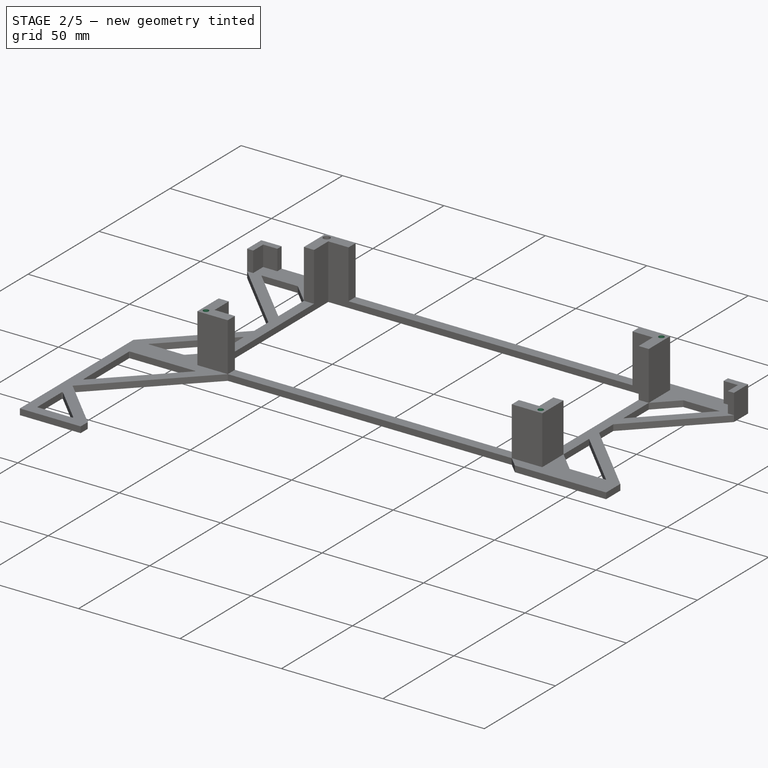
[diagram: stage 2 of 5 — iso view after this stage's code; geometry added in this stage tinted green]
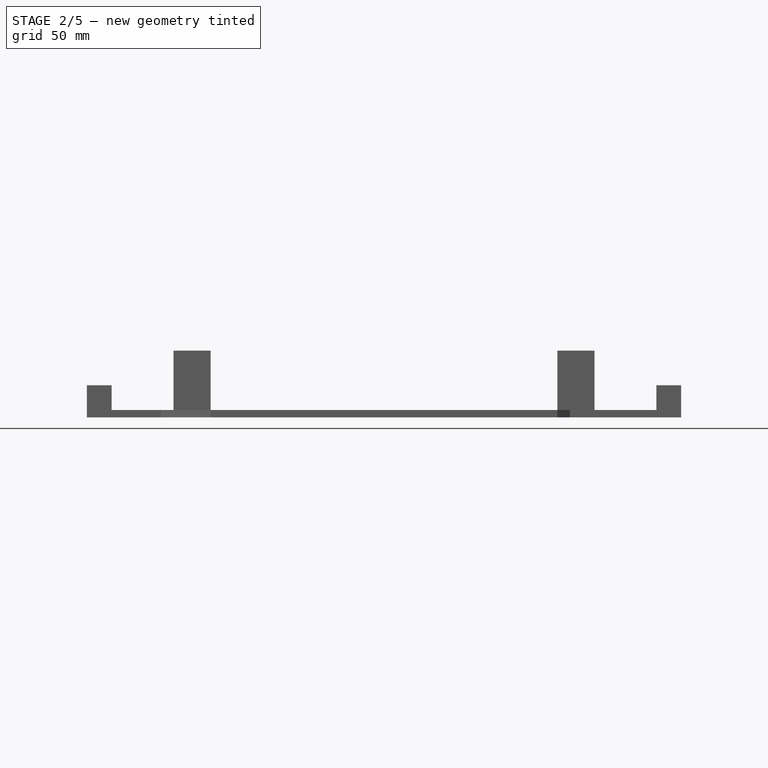
[diagram: stage 2 of 5 — front view after this stage's code; geometry added in this stage tinted green]
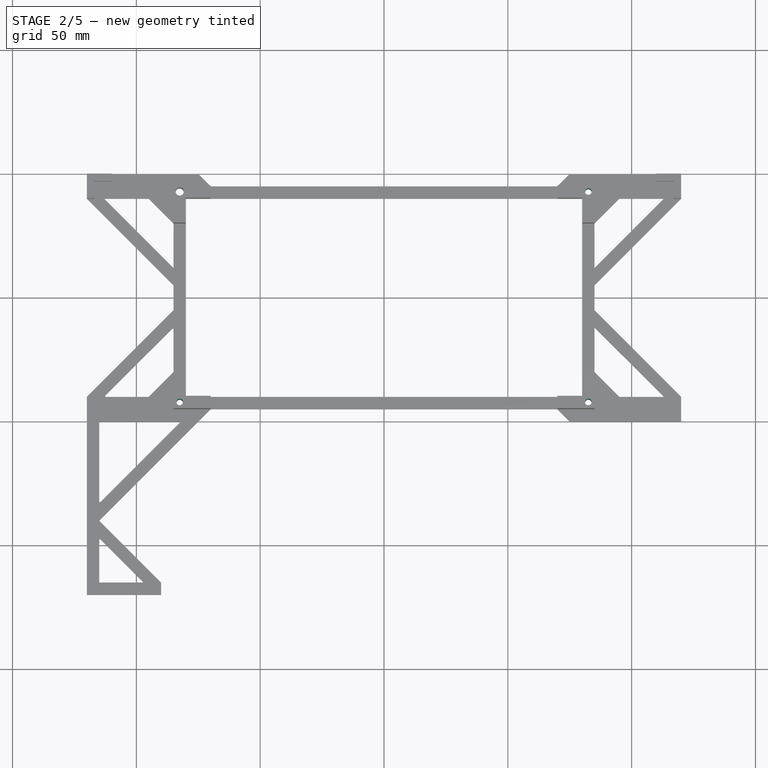
[diagram: stage 2 of 5 — top view after this stage's code; geometry added in this stage tinted green]
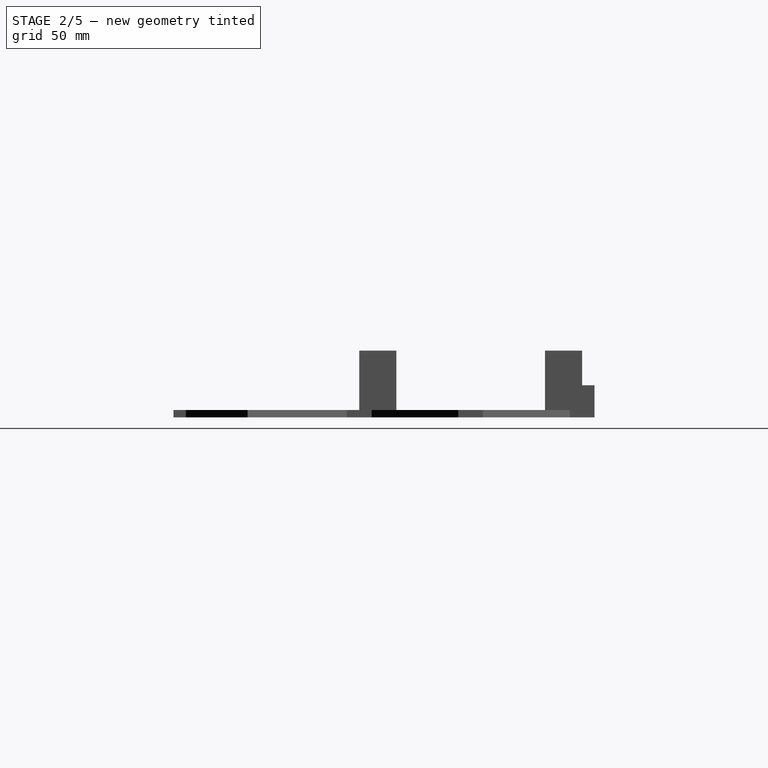
[diagram: stage 2 of 5 — right view after this stage's code; geometry added in this stage tinted green]
FEATURE [Sketcher::SketchObject] Sketch015
  MapMode = 5
  Placement = pos=(0,0,27) rot=(0,0,1;0rad)
  Support = -> [Hole]
  sketch-geometry (1):
    g0: Circle CenterX=-82.5 CenterY=-42.5 CenterZ=0 NormalX=0 NormalY=0 NormalZ=1 AngleXU=0 Radius=1.4
  constraints (3):
    c: DistanceX(g0,g-1) = 82.5
    c: DistanceY(g0,g-1) = 42.5
    c: Radius(g0) = 1.4
FEATURE [PartDesign::Hole] Hole001
  BaseFeature = -> Hole
  Depth = 30
  DepthType = 0
  Diameter = 2.65
  DrillPoint = 0
  DrillPointAngle = 118
  HoleCutCountersinkAngle = 90
  HoleCutDepth = 0
  HoleCutDiameter = 3
  HoleCutType = 0
  ModelActualThread = false
  Profile = -> Sketch015
  Tapered = false
  TaperedAngle = 90
  ThreadAngle = 60
  ThreadClass = 0
  ThreadCutOffInner = 0.0378886
  ThreadCutOffOuter = 0.0757772
  ThreadDirection = 1
  ThreadFit = 0
  ThreadPitch = 0.35
  ThreadSize = 0
  ThreadType = 0
  Threaded = false
FEATURE [Sketcher::SketchObject] Sketch016
  MapMode = 5
  Placement = pos=(0,0,27) rot=(0,0,1;0rad)
  Support = -> [Hole001]
  sketch-geometry (1):
    g0: Circle CenterX=82.5 CenterY=42.5 CenterZ=0 NormalX=0 NormalY=0 NormalZ=1 AngleXU=0 Radius=1.4
  constraints (3):
    c: DistanceX(g-1,g0) = 82.5
    c: DistanceY(g-1,g0) = 42.5
    c: Radius(g0) = 1.4
FEATURE [PartDesign::Hole] Hole002
  BaseFeature = -> Hole001
  Depth = 30
  DepthType = 0
  Diameter = 2.65
  DrillPoint = 0
  DrillPointAngle = 118
  HoleCutCountersinkAngle = 90
  HoleCutDepth = 0
  HoleCutDiameter = 3
  HoleCutType = 0
  ModelActualThread = false
  Profile = -> Sketch016
  Tapered = false
  TaperedAngle = 90
  ThreadAngle = 60
  ThreadClass = 0
  ThreadCutOffInner = 0.0378886
  ThreadCutOffOuter = 0.0757772
  ThreadDirection = 1
  ThreadFit = 0
  ThreadPitch = 0.35
  ThreadSize = 9
  ThreadType = 2
  Threaded = true
FEATURE [Sketcher::SketchObject] Sketch017
  MapMode = 5
  Placement = pos=(0,0,27) rot=(0,0,1;0rad)
  Support = -> [Hole002]
  sketch-geometry (1):
    g0: Circle CenterX=82.5 CenterY=-42.5 CenterZ=0 NormalX=0 NormalY=0 NormalZ=1 AngleXU=0 Radius=1.4
  constraints (3):
    c: DistanceY(g0,g-1) = 42.5
    c: DistanceX(g-1,g0) = 82.5
    c: Radius(g0) = 1.4
FEATURE [PartDesign::Hole] Hole003
  BaseFeature = -> Hole002
  Depth = 30
  DepthType = 0
  Diameter = 2.65
  DrillPoint = 0
  DrillPointAngle = 118
  HoleCutCountersinkAngle = 90
  HoleCutDepth = 0
  HoleCutDiameter = 3
  HoleCutType = 0
  ModelActualThread = false
  Profile = -> Sketch017
  Tapered = false
  TaperedAngle = 90
  ThreadAngle = 60
  ThreadClass = 0
  ThreadCutOffInner = 0.0378886
  ThreadCutOffOuter = 0.0757772
  ThreadDirection = 0
  ThreadFit = 0
  ThreadPitch = 0.35
  ThreadSize = 9
  ThreadType = 2
  Threaded = true
FEATURE [PartDesign::Fillet] Fillet
  Base = -> Hole003 [Edge195]
  BaseFeature = -> Hole003
  Radius = 0.3
FEATURE [PartDesign::Fillet] Fillet001
  Base = -> Fillet [Edge23]
  BaseFeature = -> Fillet
  Radius = 0.3
FEATURE [PartDesign::Fillet] Fillet002
  Base = -> Fillet001 [Edge30]
  BaseFeature = -> Fillet001
  Radius = 0.3
FEATURE [PartDesign::Fillet] Fillet003
  Base = -> Fillet002 [Edge69]
  BaseFeature = -> Fillet002
  Radius = 0.3
FEATURE [PartDesign::Fillet] Fillet004
  Base = -> Fillet003 [Edge88,Edge89,Edge91]
  BaseFeature = -> Fillet003
  Radius = 0.3
FEATURE [PartDesign::Fillet] Fillet005
  Base = -> Fillet004 [Edge78,Edge87,Edge83]
  BaseFeature = -> Fillet004
  Radius = 0.3
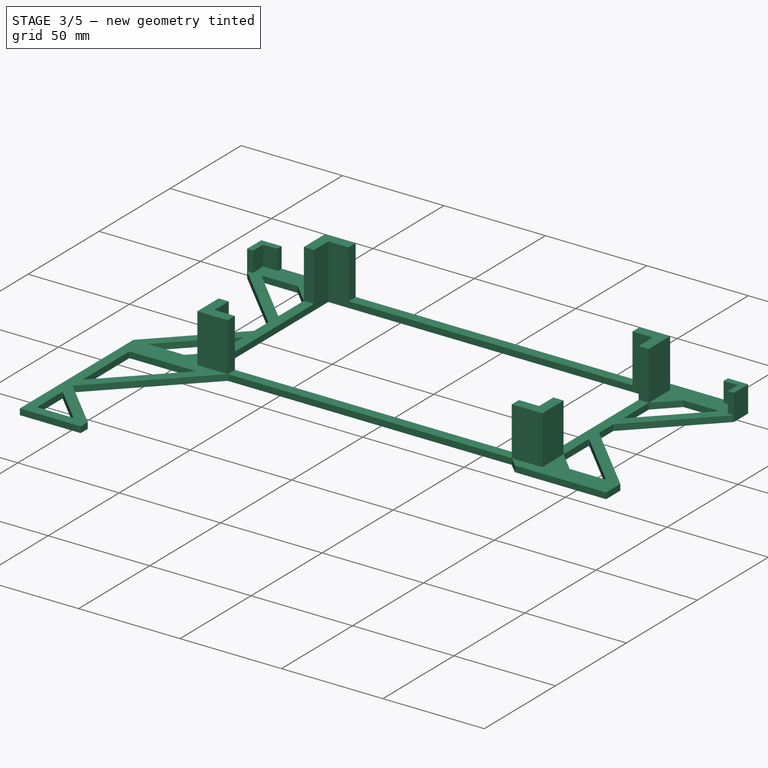
[diagram: stage 3 of 5 — iso view after this stage's code; geometry added in this stage tinted green]
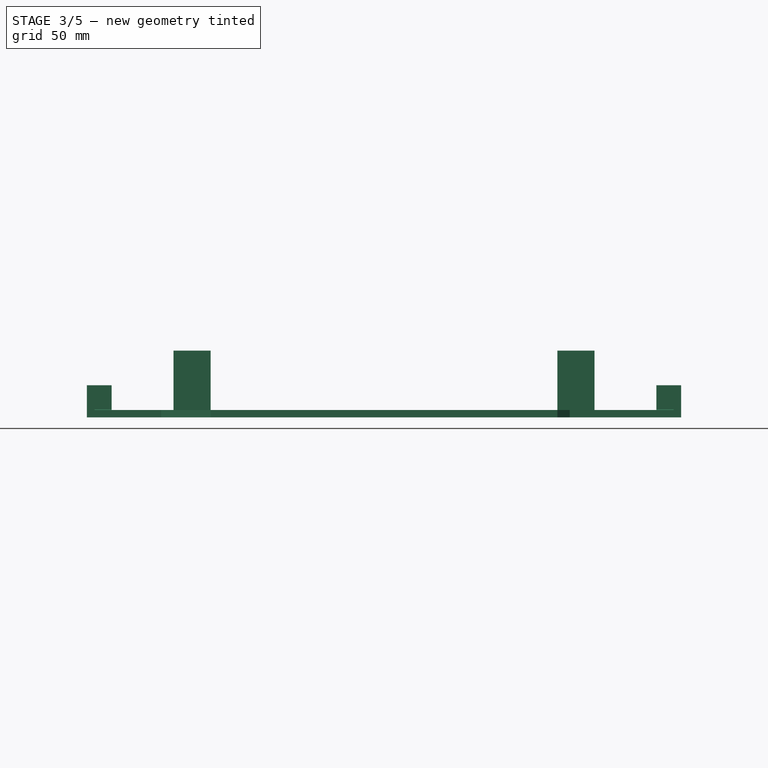
[diagram: stage 3 of 5 — front view after this stage's code; geometry added in this stage tinted green]
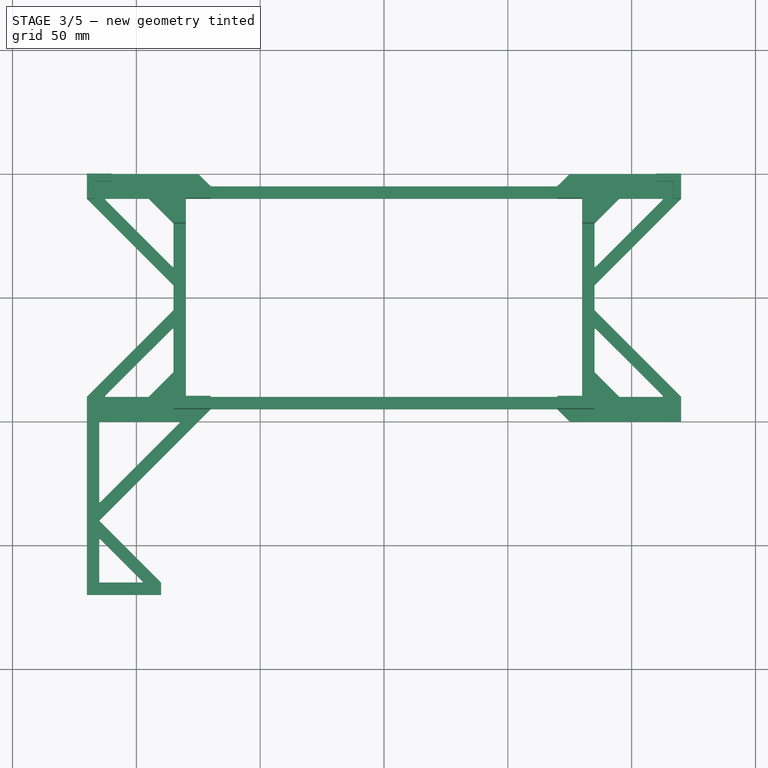
[diagram: stage 3 of 5 — top view after this stage's code; geometry added in this stage tinted green]
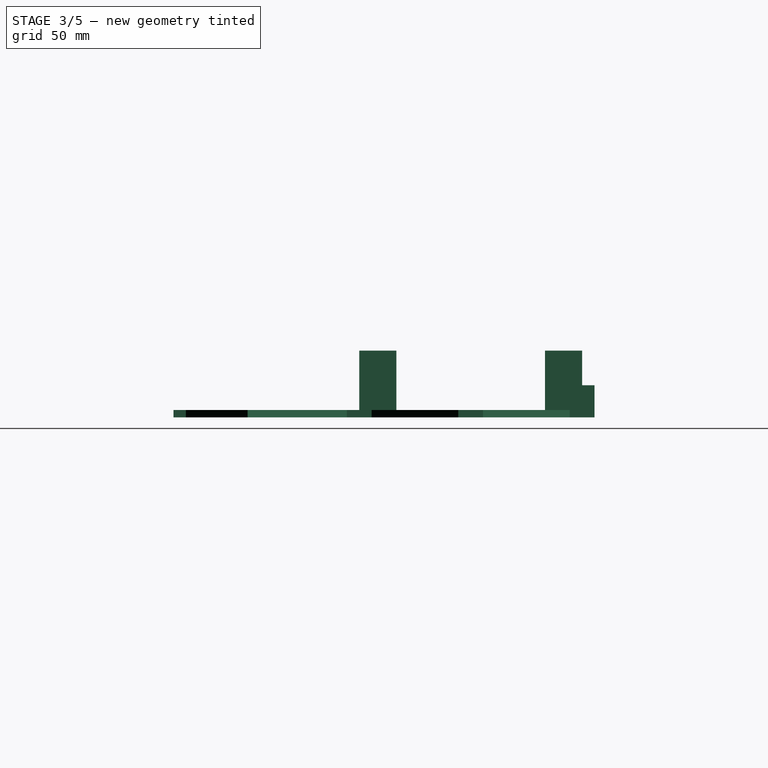
[diagram: stage 3 of 5 — right view after this stage's code; geometry added in this stage tinted green]
FEATURE [PartDesign::Fillet] Fillet006
  Base = -> Fillet005 [Edge272,Edge273]
  BaseFeature = -> Fillet005
  Radius = 0.3
FEATURE [PartDesign::Fillet] Fillet007
  Base = -> Fillet006 [Edge38,Edge39]
  BaseFeature = -> Fillet006
  Radius = 0.3
FEATURE [PartDesign::Fillet] Fillet008
  Base = -> Fillet007 [Edge281,Edge280,Edge285,Edge232]
  BaseFeature = -> Fillet007
  Radius = 0.3
FEATURE [PartDesign::Fillet] Fillet009
  Base = -> Fillet008 [Edge165,Edge68]
  BaseFeature = -> Fillet008
  Radius = 0.3
FEATURE [Sketcher::SketchObject] Sketch
  MapMode = 5
  Placement = pos=(0,0,27) rot=(0,0,1;0rad)
  Support = -> [Fillet009]
  sketch-geometry (58):
    g0: LineSegment StartX=-80 StartY=40 StartZ=0 EndX=80 EndY=40 EndZ=0
    g1: LineSegment StartX=80 StartY=40 StartZ=0 EndX=80 EndY=-40 EndZ=0
    g2: LineSegment StartX=80 StartY=-40 StartZ=0 EndX=-80 EndY=-40 EndZ=0
    g3: LineSegment StartX=-80 StartY=-40 StartZ=0 EndX=-80 EndY=40 EndZ=0
    g4: LineSegment StartX=-85 StartY=45 StartZ=0 EndX=85 EndY=45 EndZ=0
    g5: LineSegment StartX=85 StartY=45 StartZ=0 EndX=85 EndY=-45 EndZ=0
    g6: LineSegment StartX=85 StartY=-45 StartZ=0 EndX=-85 EndY=-45 EndZ=0
    g7: LineSegment StartX=-85 StartY=-45 StartZ=0 EndX=-85 EndY=45 EndZ=0
    g8: LineSegment StartX=-70 StartY=45 StartZ=0 EndX=-75 EndY=50 EndZ=0
    g9: LineSegment StartX=-120 StartY=50 StartZ=0 EndX=-75 EndY=50 EndZ=0
    g10: LineSegment StartX=-120 StartY=50 StartZ=0 EndX=-120 EndY=40 EndZ=0
    g11: LineSegment StartX=-120 StartY=40 StartZ=0 EndX=-85 EndY=5 EndZ=0
    g12: LineSegment StartX=-113 StartY=40 StartZ=0 EndX=-95 EndY=40 EndZ=0
    g13: LineSegment StartX=-113 StartY=40 StartZ=0 EndX=-85 EndY=12 EndZ=0
    g14: LineSegment StartX=-95 StartY=40 StartZ=0 EndX=-85 EndY=30 EndZ=0
    g15: LineSegment StartX=-85 StartY=30 StartZ=0 EndX=-80 EndY=30 EndZ=0
    g16: LineSegment StartX=-70 StartY=45 StartZ=0 EndX=-70 EndY=40 EndZ=0
    g17: Circle CenterX=-82.5 CenterY=42.5 CenterZ=0 NormalX=0 NormalY=0 NormalZ=1 AngleXU=0 Radius=0.9
    g18: LineSegment StartX=70 StartY=45 StartZ=0 EndX=75 EndY=50 EndZ=0
    g19: LineSegment StartX=120 StartY=50 StartZ=0 EndX=75 EndY=50 EndZ=0
    g20: LineSegment StartX=120 StartY=50 StartZ=0 EndX=120 EndY=40 EndZ=0
    g21: LineSegment StartX=120 StartY=40 StartZ=0 EndX=85 EndY=5 EndZ=0
    g22: LineSegment StartX=113 StartY=40 StartZ=0 EndX=95 EndY=40 EndZ=0
    g23: LineSegment StartX=113 StartY=40 StartZ=0 EndX=85 EndY=12 EndZ=0
    g24: LineSegment StartX=95 StartY=40 StartZ=0 EndX=85 EndY=30 EndZ=0
    g25: LineSegment StartX=85 StartY=30 StartZ=0 EndX=80 EndY=30 EndZ=0
    g26: LineSegment StartX=70 StartY=45 StartZ=0 EndX=70 EndY=40 EndZ=0
    g27: Circle CenterX=82.5 CenterY=42.5 CenterZ=0 NormalX=0 NormalY=0 NormalZ=1 AngleXU=0 Radius=0.9
    g28: LineSegment StartX=70 StartY=-45 StartZ=0 EndX=75 EndY=-50 EndZ=0
    g29: LineSegment StartX=120 StartY=-50 StartZ=0 EndX=75 EndY=-50 EndZ=0
    g30: LineSegment StartX=120 StartY=-50 StartZ=0 EndX=120 EndY=-40 EndZ=0
    g31: LineSegment StartX=120 StartY=-40 StartZ=0 EndX=85 EndY=-5 EndZ=0
    g32: LineSegment StartX=113 StartY=-40 StartZ=0 EndX=95 EndY=-40 EndZ=0
    g33: LineSegment StartX=113 StartY=-40 StartZ=0 EndX=85 EndY=-12 EndZ=0
    g34: LineSegment StartX=95 StartY=-40 StartZ=0 EndX=85 EndY=-30 EndZ=0
    g35: LineSegment StartX=85 StartY=-30 StartZ=0 EndX=80 EndY=-30 EndZ=0
    g36: LineSegment StartX=70 StartY=-45 StartZ=0 EndX=70 EndY=-40 EndZ=0
    g37: Circle CenterX=82.5 CenterY=-42.5 CenterZ=0 NormalX=0 NormalY=0 NormalZ=1 AngleXU=0 Radius=0.9
    g38: LineSegment StartX=-70 StartY=-45 StartZ=0 EndX=-75 EndY=-50 EndZ=0
    g39: LineSegment StartX=-120 StartY=-50 StartZ=0 EndX=-75 EndY=-50 EndZ=0
    g40: LineSegment StartX=-120 StartY=-50 StartZ=0 EndX=-120 EndY=-40 EndZ=0
    g41: LineSegment StartX=-120 StartY=-40 StartZ=0 EndX=-85 EndY=-5 EndZ=0
    g42: LineSegment StartX=-113 StartY=-40 StartZ=0 EndX=-95 EndY=-40 EndZ=0
    g43: LineSegment StartX=-113 StartY=-40 StartZ=0 EndX=-85 EndY=-12 EndZ=0
    g44: LineSegment StartX=-95 StartY=-40 StartZ=0 EndX=-85 EndY=-30 EndZ=0
    g45: LineSegment StartX=-85 StartY=-30 StartZ=0 EndX=-80 EndY=-30 EndZ=0
    g46: LineSegment StartX=-70 StartY=-45 StartZ=0 EndX=-70 EndY=-40 EndZ=0
    g47: Circle CenterX=-82.5 CenterY=-42.5 CenterZ=0 NormalX=0 NormalY=0 NormalZ=1 AngleXU=0 Radius=0.9
    g48: LineSegment StartX=-120 StartY=-50 StartZ=0 EndX=-120 EndY=-120 EndZ=0
    g49: LineSegment StartX=-120 StartY=-120 StartZ=0 EndX=-90 EndY=-120 EndZ=0
    g50: LineSegment StartX=-90 StartY=-120 StartZ=0 EndX=-90 EndY=-115 EndZ=0
    g51: LineSegment StartX=-90 StartY=-115 StartZ=0 EndX=-115 EndY=-90 EndZ=0
    g52: LineSegment StartX=-115 StartY=-90 StartZ=0 EndX=-75 EndY=-50 EndZ=0
    g53: LineSegment StartX=-115 StartY=-50 StartZ=0 EndX=-115 EndY=-83 EndZ=0
    g54: LineSegment StartX=-115 StartY=-97 StartZ=0 EndX=-115 EndY=-115 EndZ=0
    g55: LineSegment StartX=-115 StartY=-115 StartZ=0 EndX=-97 EndY=-115 EndZ=0
    g56: LineSegment StartX=-97 StartY=-115 StartZ=0 EndX=-115 EndY=-97 EndZ=0
    g57: LineSegment StartX=-115 StartY=-83 StartZ=0 EndX=-82 EndY=-50 EndZ=0
  constraints (182):
    c: Coincident(g0,g1)
    c: Coincident(g1,g2)
    c: Coincident(g2,g3)
    c: Coincident(g3,g0)
    c: Horizontal(g0)
    c: Horizontal(g2)
    c: Vertical(g1)
    c: Vertical(g3)
    c: DistanceX(g0,g0) = 160
    c: DistanceY(g3,g3) = 80
    c: Distance(g-1,g1) = 80
    c: Distance(g-1,g0) = 40
    c: Coincident(g4,g5)
    c: Coincident(g5,g6)
    c: Coincident(g6,g7)
    c: Coincident(g7,g4)
    c: Horizontal(g4)
    c: Horizontal(g6)
    c: Vertical(g5)
    c: Vertical(g7)
    c: DistanceX(g6,g5) = 170
    c: DistanceY(g5,g4) = 90
    c: Distance(g-1,g5) = 85
    c: Distance(g-1,g4) = 45
    c: PointOnObject(g8,g4)
    c: Coincident(g8,g9)
    c: DistanceY(g4,g8) = 5
    c: DistanceX(g8,g8) = 5
    c: DistanceX(g9,g4) = 35
    c: DistanceX(g4,g8) = 15
    c: DistanceY(g4,g9) = 5
    c: Coincident(g9,g10)
    c: DistanceY(g10,g9) = 10
    c: DistanceX(g10,g4) = 35
    c: Coincident(g11,g10)
    c: PointOnObject(g11,g7)
    c: DistanceY(g11,g4) = 40
    c: DistanceY(g12,g8) = 10
    c: Parallel(g9,g12)
    c: DistanceX(g12,g4) = 10
    c: DistanceX(g10,g12) = 7
    c: Coincident(g13,g12)
    c: Coincident(g14,g12)
    c: PointOnObject(g14,g7)
    c: PointOnObject(g13,g7)
    c: DistanceY(g11,g13) = 7
    c: DistanceY(g14,g12) = 10
    c: Coincident(g15,g14)
    c: PointOnObject(g15,g3)
    c: DistanceY(g15,g0) = 10
    c: Coincident(g16,g8)
    c: DistanceX(g0,g16) = 10
    c: PointOnObject(g16,g0)
    c: DistanceX(g4,g17) = 2.5
    c: DistanceY(g0,g17) = 2.5
    c: Radius(g17) = 0.9  'ra'
    c: Coincident(g18,g19)
    c: Coincident(g19,g20)
    c: Coincident(g21,g20)
    c: Parallel(g19,g22)
    c: Coincident(g23,g22)
    c: Coincident(g24,g22)
    c: Coincident(g25,g24)
    c: Coincident(g26,g18)
    c: Radius(g27) = 0.9  'ra'
    c: PointOnObject(g26,g0)
    c: PointOnObject(g18,g4)
    c: DistanceX(g18,g4) = 15
    c: DistanceX(g26,g0) = 10
    c: DistanceX(g18,g4) = 10
    c: DistanceX(g4,g19) = 35
    c: DistanceX(g4,g22) = 10
    c: DistanceX(g4,g22) = 28
    c: DistanceX(g0,g24) = 5
    c: DistanceY(g24,g0) = 10
    c: DistanceY(g25,g0) = 10
    c: DistanceY(g23,g0) = 28
    c: DistanceY(g21,g0) = 35
    c: DistanceY(g20,g19) = 10
    c: DistanceY(g22,g19) = 10
    c: DistanceY(g4,g18) = 5
    c: DistanceY(g22,g18) = 10
    c: PointOnObject(g25,g1)
    c: PointOnObject(g23,g5)
    c: PointOnObject(g21,g5)
    c: DistanceX(g4,g20) = 35
    c: DistanceX(g27,g4) = 2.5
    c: DistanceY(g0,g27) = 2.5
    c: Coincident(g28,g29)
    c: Coincident(g29,g30)
    c: Coincident(g31,g30)
    c: Parallel(g29,g32)
    c: Coincident(g33,g32)
    c: Coincident(g34,g32)
    c: Coincident(g35,g34)
    c: Coincident(g36,g28)
    c: Radius(g37) = 0.9  'ra'
    c: PointOnObject(g31,g5)
    c: PointOnObject(g33,g5)
    c: PointOnObject(g34,g5)
    c: PointOnObject(g35,g1)
    c: PointOnObject(g36,g2)
    c: PointOnObject(g28,g6)
    c: DistanceX(g5,g32) = 10
    c: DistanceX(g5,g32) = 28
    c: DistanceX(g5,g30) = 35
    c: DistanceX(g5,g29) = 35
    c: DistanceX(g28,g5) = 10
    c: DistanceX(g28,g5) = 15
    c: DistanceX(g36,g5) = 15
    c: DistanceY(g28,g5) = 5
    c: DistanceY(g5,g32) = 5
    c: DistanceY(g5,g34) = 15
    c: DistanceY(g5,g35) = 15
    c: DistanceY(g5,g33) = 33
    c: DistanceY(g5,g31) = 40
    c: DistanceY(g5,g32) = 5
    c: DistanceY(g5,g30) = 5
    c: DistanceY(g5,g37) = 2.5
    c: DistanceX(g1,g37) = 2.5
    c: Coincident(g38,g39)
    c: Coincident(g39,g40)
    c: Coincident(g41,g40)
    c: Coincident(g43,g42)
    c: Coincident(g44,g42)
    c: Coincident(g45,g44)
    c: Coincident(g46,g38)
    c: Radius(g47) = 0.9  'ra'
    c: PointOnObject(g41,g7)
    c: PointOnObject(g43,g7)
    c: PointOnObject(g44,g7)
    c: PointOnObject(g45,g3)
    c: PointOnObject(g46,g2)
    c: PointOnObject(g38,g6)
    c: DistanceX(g6,g38) = 15
    c: DistanceX(g6,g46) = 15
    c: DistanceX(g6,g38) = 10
    c: DistanceX(g39,g6) = 35
    c: DistanceX(g42,g6) = 10
    c: DistanceX(g42,g6) = 28
    c: DistanceX(g40,g6) = 35
    c: DistanceY(g6,g44) = 15
    c: DistanceY(g6,g45) = 15
    c: DistanceY(g6,g41) = 40
    c: DistanceY(g6,g43) = 33
    c: DistanceY(g6,g42) = 5
    c: DistanceY(g39,g2) = 10
    c: DistanceY(g6,g40) = 5
    c: DistanceY(g6,g47) = 2.5
    c: DistanceY(g38,g6) = 5
    c: DistanceX(g47,g2) = 2.5
    c: Coincident(g48,g39)
    c: DistanceY(g48,g39) = 70
    c: DistanceX(g48,g6) = 35
    c: Coincident(g49,g48)
    c: DistanceX(g48,g49) = 30
    c: DistanceY(g49,g6) = 75
    c: Coincident(g50,g49)
    c: Coincident(g50,g51)
    c: Coincident(g51,g52)
    c: Coincident(g52,g38)
    c: DistanceX(g48,g50) = 30
    c: DistanceY(g49,g50) = 5
    c: DistanceY(g48,g51) = 30
    c: DistanceX(g48,g51) = 5
    c: Coincident(g54,g55)
    c: Coincident(g55,g56)
    c: Coincident(g54,g56)
    c: Parallel(g48,g53)
    c: Parallel(g54,g48)
    c: Parallel(g56,g51)
    c: Parallel(g55,g49)
    c: DistanceX(g39,g53) = 5
    c: DistanceX(g48,g54) = 5
    c: DistanceX(g55,g49) = 7
    c: DistanceY(g51,g53) = 7
    c: DistanceY(g49,g55) = 5
    c: PointOnObject(g53,g39)
    c: PointOnObject(g57,g39)
    c: Coincident(g57,g53)
    c: DistanceX(g6,g57) = 3
    c: DistanceY(g6,g42) = 5
FEATURE [PartDesign::Body] Body
  Group = -> [Sketch,Sketch002]
  Origin = -> Origin001
FEATURE [Sketcher::SketchObject] Sketch018
  MapMode = 5
  Placement = pos=(0,0,27) rot=(0,0,1;0rad)
  Support = -> [Fillet009]
  sketch-geometry (4):
    g0: LineSegment StartX=80.6891 StartY=-40.5836 StartZ=0 EndX=84.3965 EndY=-40.5836 EndZ=0
    g1: LineSegment StartX=84.3965 StartY=-40.5836 StartZ=0 EndX=84.3965 EndY=-44.291 EndZ=0
    g2: LineSegment StartX=84.3965 StartY=-44.291 StartZ=0 EndX=80.6891 EndY=-44.291 EndZ=0
    g3: LineSegment StartX=80.6891 StartY=-44.291 StartZ=0 EndX=80.6891 EndY=-40.5836 EndZ=0
  constraints (8):
    c: Coincident(g0,g1)
    c: Coincident(g1,g2)
    c: Coincident(g2,g3)
    c: Coincident(g3,g0)
    c: Horizontal(g0)
    c: Horizontal(g2)
    c: Vertical(g1)
    c: Vertical(g3)
FEATURE [PartDesign::Pad] Pad008
  BaseFeature = -> Fillet009
  Length = 27
  Length2 = 100
  Profile = -> Sketch018
  Refine = true
  Reversed = true
  Type = 0
FEATURE [Sketcher::SketchObject] Sketch019
  MapMode = 5
  Placement = pos=(0,0,27) rot=(0,0,1;0rad)
  Support = -> [Pad008]
  sketch-geometry (4):
    g0: LineSegment StartX=80.2783 StartY=44.4972 StartZ=0 EndX=84.6036 EndY=44.4972 EndZ=0
    g1: LineSegment StartX=84.6036 StartY=44.4972 StartZ=0 EndX=84.6036 EndY=40.7279 EndZ=0
    g2: LineSegment StartX=84.6036 StartY=40.7279 StartZ=0 EndX=80.2783 EndY=40.7279 EndZ=0
    g3: LineSegment StartX=80.2783 StartY=40.7279 StartZ=0 EndX=80.2783 EndY=44.4972 EndZ=0
  constraints (8):
    c: Coincident(g0,g1)
    c: Coincident(g1,g2)
    c: Coincident(g2,g3)
    c: Coincident(g3,g0)
    c: Horizontal(g0)
    c: Horizontal(g2)
    c: Vertical(g1)
    c: Vertical(g3)
FEATURE [PartDesign::Pad] Pad009
  BaseFeature = -> Pad008
  Length = 27
  Length2 = 100
  Profile = -> Sketch019
  Refine = true
  Reversed = true
  Type = 0
FEATURE [Sketcher::SketchObject] Sketch020
  MapMode = 5
  Placement = pos=(0,0,27) rot=(0,0,1;0rad)
  Support = -> [Pad009]
  sketch-geometry (4):
    g0: LineSegment StartX=-84.6712 StartY=44.5929 StartZ=0 EndX=-80.1979 EndY=44.5929 EndZ=0
    g1: LineSegment StartX=-80.1979 StartY=44.5929 StartZ=0 EndX=-80.1979 EndY=40.2439 EndZ=0
    g2: LineSegment StartX=-80.1979 StartY=40.2439 StartZ=0 EndX=-84.6712 EndY=40.2439 EndZ=0
    g3: LineSegment StartX=-84.6712 StartY=40.2439 StartZ=0 EndX=-84.6712 EndY=44.5929 EndZ=0
  constraints (8):
    c: Coincident(g0,g1)
    c: Coincident(g1,g2)
    c: Coincident(g2,g3)
    c: Coincident(g3,g0)
    c: Horizontal(g0)
    c: Horizontal(g2)
    c: Vertical(g1)
    c: Vertical(g3)
FEATURE [PartDesign::Pad] Pad010
  BaseFeature = -> Pad009
  Length = 27
  Length2 = 100
  Profile = -> Sketch020
  Refine = true
  Reversed = true
  Type = 0
FEATURE [Sketcher::SketchObject] Sketch021
  MapMode = 5
  Placement = pos=(0,0,27) rot=(0,0,1;0rad)
  Support = -> [Pad010]
  sketch-geometry (4):
    g0: LineSegment StartX=-84.1507 StartY=-40.7293 StartZ=0 EndX=-80.7369 EndY=-40.7293 EndZ=0
    g1: LineSegment StartX=-80.7369 StartY=-40.7293 StartZ=0 EndX=-80.7369 EndY=-44.3676 EndZ=0
    g2: LineSegment StartX=-80.7369 StartY=-44.3676 StartZ=0 EndX=-84.1507 EndY=-44.3676 EndZ=0
    g3: LineSegment StartX=-84.1507 StartY=-44.3676 StartZ=0 EndX=-84.1507 EndY=-40.7293 EndZ=0
  constraints (8):
    c: Coincident(g0,g1)
    c: Coincident(g1,g2)
    c: Coincident(g2,g3)
    c: Coincident(g3,g0)
    c: Horizontal(g0)
    c: Horizontal(g2)
    c: Vertical(g1)
    c: Vertical(g3)
FEATURE [PartDesign::Pad] Pad011
  BaseFeature = -> Pad010
  Length = 27
  Length2 = 100
  Profile = -> Sketch021
  Refine = true
  Reversed = true
  Type = 0
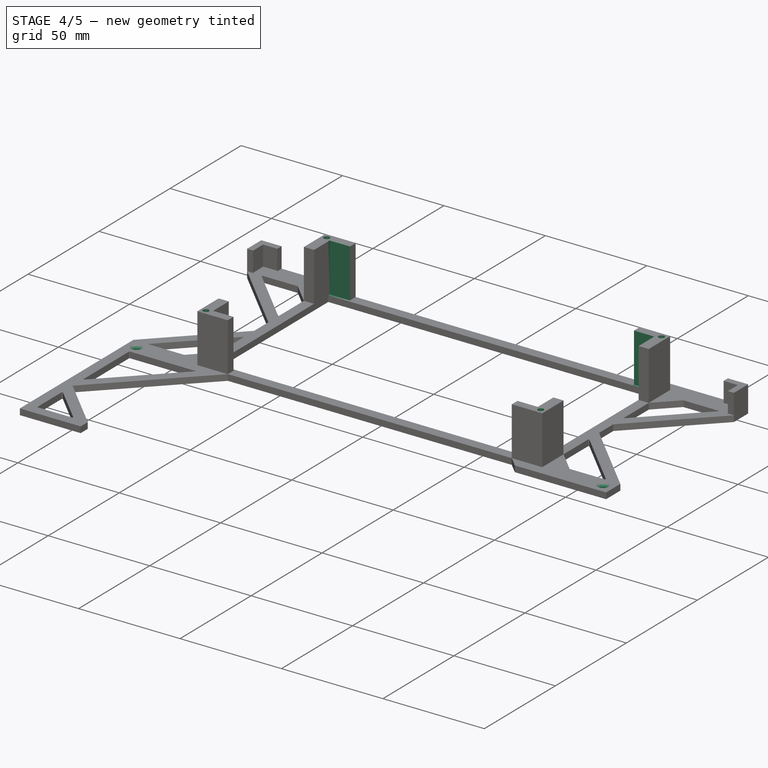
[diagram: stage 4 of 5 — iso view after this stage's code; geometry added in this stage tinted green]
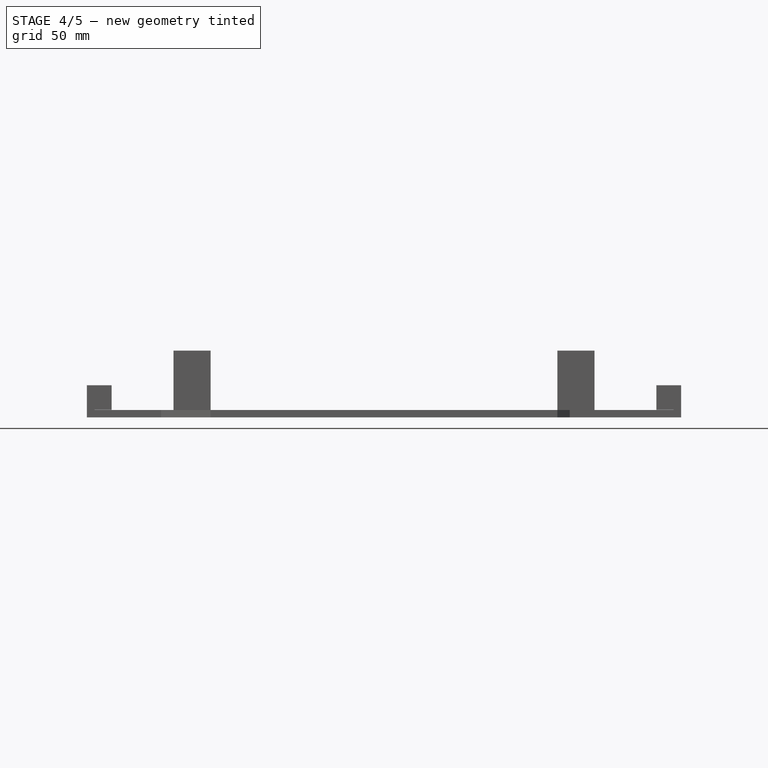
[diagram: stage 4 of 5 — front view after this stage's code; geometry added in this stage tinted green]
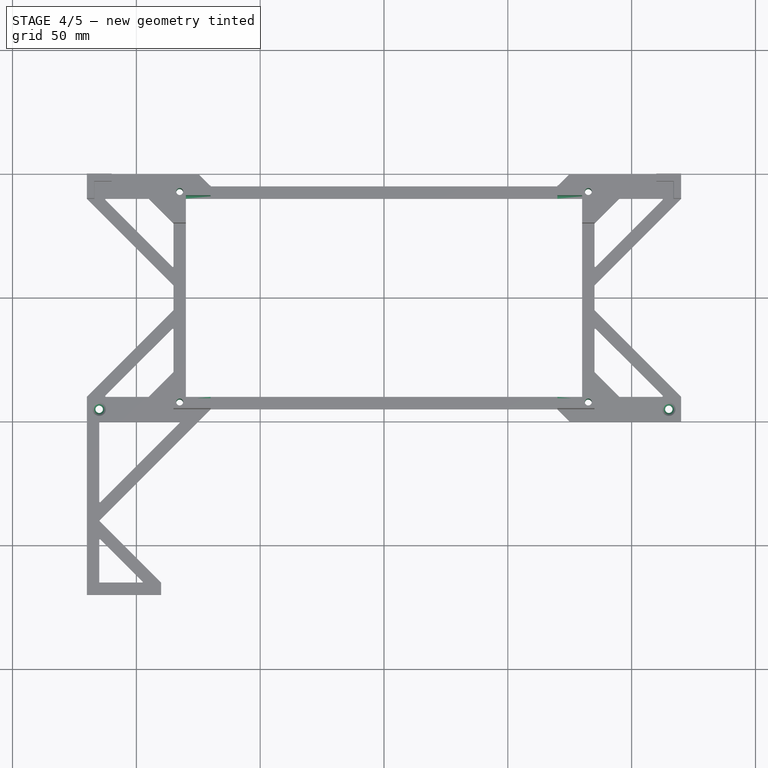
[diagram: stage 4 of 5 — top view after this stage's code; geometry added in this stage tinted green]
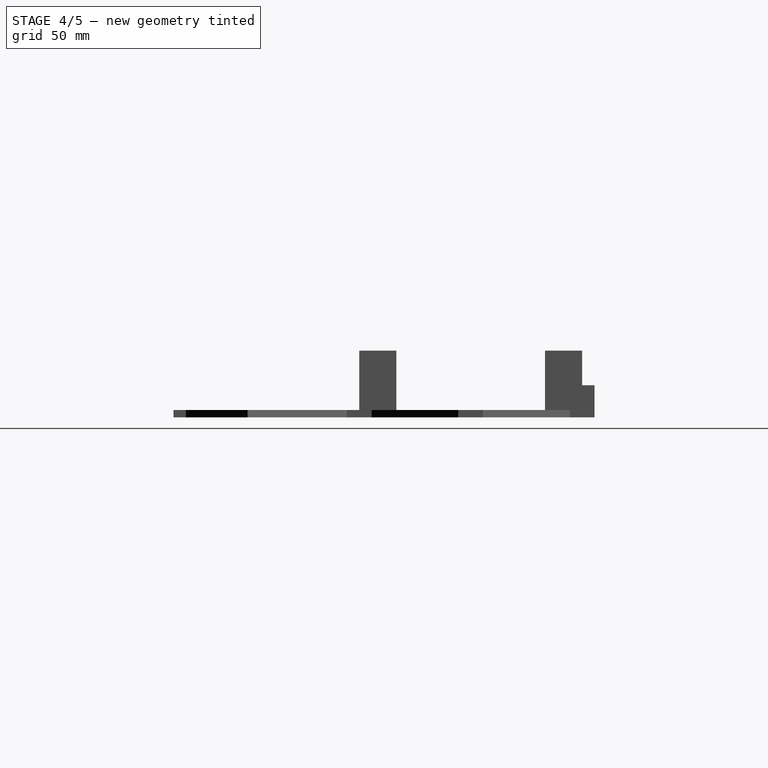
[diagram: stage 4 of 5 — right view after this stage's code; geometry added in this stage tinted green]
FEATURE [Sketcher::SketchObject] Sketch023
  MapMode = 5
  Placement = pos=(0,0,27) rot=(0,0,1;0rad)
  Support = -> [Pad011]
  sketch-geometry (1):
    g0: Circle CenterX=-82.5 CenterY=42.5 CenterZ=0 NormalX=0 NormalY=0 NormalZ=1 AngleXU=0 Radius=1.4
  constraints (3):
    c: DistanceX(g0,g-1) = 82.5
    c: DistanceY(g-1,g0) = 42.5
    c: Radius(g0) = 1.4
FEATURE [PartDesign::Pocket] Pocket
  BaseFeature = -> Pad011
  Length = 30
  Length2 = 100
  Profile = -> Sketch023
  Type = 0
FEATURE [Sketcher::SketchObject] Sketch024
  MapMode = 5
  Placement = pos=(0,0,27) rot=(0,0,1;0rad)
  Support = -> [Hole]
  sketch-geometry (1):
    g0: Circle CenterX=-82.5 CenterY=-42.5 CenterZ=0 NormalX=0 NormalY=0 NormalZ=1 AngleXU=0 Radius=1.4
  constraints (3):
    c: DistanceX(g0,g-1) = 82.5
    c: DistanceY(g0,g-1) = 42.5
    c: Radius(g0) = 1.4
FEATURE [PartDesign::Pocket] Pocket001
  BaseFeature = -> Pocket
  Length = 30
  Length2 = 100
  Profile = -> Sketch024
  Type = 0
FEATURE [Sketcher::SketchObject] Sketch025
  MapMode = 5
  Placement = pos=(0,0,27) rot=(0,0,1;0rad)
  Support = -> [Hole001]
  sketch-geometry (1):
    g0: Circle CenterX=82.5 CenterY=42.5 CenterZ=0 NormalX=0 NormalY=0 NormalZ=1 AngleXU=0 Radius=1.4
  constraints (3):
    c: DistanceX(g-1,g0) = 82.5
    c: DistanceY(g-1,g0) = 42.5
    c: Radius(g0) = 1.4
FEATURE [PartDesign::Pocket] Pocket002
  BaseFeature = -> Pocket001
  Length = 30
  Length2 = 100
  Profile = -> Sketch025
  Type = 0
FEATURE [Sketcher::SketchObject] Sketch026
  MapMode = 5
  Placement = pos=(0,0,27) rot=(0,0,1;0rad)
  Support = -> [Hole002]
  sketch-geometry (1):
    g0: Circle CenterX=82.5 CenterY=-42.5 CenterZ=0 NormalX=0 NormalY=0 NormalZ=1 AngleXU=0 Radius=1.4
  constraints (3):
    c: DistanceY(g0,g-1) = 42.5
    c: DistanceX(g-1,g0) = 82.5
    c: Radius(g0) = 1.4
FEATURE [PartDesign::Pocket] Pocket003
  BaseFeature = -> Pocket002
  Length = 30
  Length2 = 100
  Profile = -> Sketch026
  Type = 0
FEATURE [Sketcher::SketchObject] Sketch027
  MapMode = 5
  Placement = pos=(0,0,3) rot=(0,0,1;0rad)
  Support = -> [Pocket003]
  sketch-geometry (2):
    g0: Circle CenterX=-115 CenterY=-45 CenterZ=0 NormalX=0 NormalY=0 NormalZ=1 AngleXU=0 Radius=1.5
    g1: Circle CenterX=115 CenterY=-45 CenterZ=0 NormalX=0 NormalY=0 NormalZ=1 AngleXU=0 Radius=1.5
  constraints (6):
    c: DistanceY(g0,g-1) = 45
    c: DistanceY(g1,g-1) = 45
    c: DistanceX(g0,g-1) = 115
    c: DistanceX(g-1,g1) = 115
    c: Radius(g0) = 1.5
    c: Radius(g1) = 1.5
FEATURE [PartDesign::Pocket] Pocket004
  BaseFeature = -> Pocket003
  Length = 5
  Length2 = 100
  Profile = -> Sketch027
  Type = 0
FEATURE [PartDesign::Chamfer] Chamfer
  Base = -> Pocket004 [Edge118,Edge251]
  BaseFeature = -> Pocket004
  Size = 1.2
FEATURE [Sketcher::SketchObject] Sketch028
  MapMode = 5
  Placement = pos=(0,0,27) rot=(0,0,1;0rad)
  Support = -> [Chamfer]
  sketch-geometry (4):
    g0: LineSegment StartX=-80 StartY=40 StartZ=0 EndX=-70 EndY=40 EndZ=0
    g1: LineSegment StartX=-70 StartY=40 StartZ=0 EndX=-70 EndY=41 EndZ=0
    g2: LineSegment StartX=-70 StartY=41 StartZ=0 EndX=-80 EndY=41 EndZ=0
    g3: LineSegment StartX=-80 StartY=41 StartZ=0 EndX=-80 EndY=40 EndZ=0
  constraints (12):
    c: Coincident(g0,g1)
    c: Coincident(g1,g2)
    c: Coincident(g2,g3)
    c: Coincident(g3,g0)
    c: Horizontal(g0)
    c: Horizontal(g2)
    c: Vertical(g1)
    c: Vertical(g3)
    c: DistanceY(g-1,g0) = 40
    c: DistanceY(g0,g1) = 1
    c: DistanceX(g0,g0) = 10
    c: DistanceX(g0,g-1) = 80
FEATURE [PartDesign::Pocket] Pocket005
  BaseFeature = -> Chamfer
  Length = 24
  Length2 = 100
  Profile = -> Sketch028
  Type = 0
FEATURE [Sketcher::SketchObject] Sketch029
  MapMode = 5
  Placement = pos=(0,0,27) rot=(0,0,1;0rad)
  Support = -> [Pocket005]
  sketch-geometry (4):
    g0: LineSegment StartX=70 StartY=40 StartZ=0 EndX=80 EndY=40 EndZ=0
    g1: LineSegment StartX=80 StartY=40 StartZ=0 EndX=80 EndY=41 EndZ=0
    g2: LineSegment StartX=80 StartY=41 StartZ=0 EndX=70 EndY=41 EndZ=0
    g3: LineSegment StartX=70 StartY=41 StartZ=0 EndX=70 EndY=40 EndZ=0
  constraints (12):
    c: Coincident(g0,g1)
    c: Coincident(g1,g2)
    c: Coincident(g2,g3)
    c: Coincident(g3,g0)
    c: Horizontal(g0)
    c: Horizontal(g2)
    c: Vertical(g1)
    c: Vertical(g3)
    c: DistanceY(g-1,g0) = 40
    c: DistanceX(g-1,g2) = 70
    c: DistanceX(g2,g1) = 10
    c: DistanceY(g0,g1) = 1
FEATURE [PartDesign::Pocket] Pocket006
  BaseFeature = -> Pocket005
  Length = 24
  Length2 = 100
  Profile = -> Sketch029
  Type = 0
FEATURE [Sketcher::SketchObject] Sketch030
  MapMode = 5
  Placement = pos=(0,0,27) rot=(0,0,1;0rad)
  Support = -> [Pocket006]
  sketch-geometry (8):
    g0: LineSegment StartX=70 StartY=-40 StartZ=0 EndX=80 EndY=-40 EndZ=0
    g1: LineSegment StartX=80 StartY=-40 StartZ=0 EndX=80 EndY=-41 EndZ=0
    g2: LineSegment StartX=80 StartY=-41 StartZ=0 EndX=70 EndY=-41 EndZ=0
    g3: LineSegment StartX=70 StartY=-41 StartZ=0 EndX=70 EndY=-40 EndZ=0
    g4: LineSegment StartX=-70 StartY=-40 StartZ=0 EndX=-80 EndY=-40 EndZ=0
    g5: LineSegment StartX=-80 StartY=-40 StartZ=0 EndX=-80 EndY=-41 EndZ=0
    g6: LineSegment StartX=-80 StartY=-41 StartZ=0 EndX=-70 EndY=-41 EndZ=0
    g7: LineSegment StartX=-70 StartY=-41 StartZ=0 EndX=-70 EndY=-40 EndZ=0
  constraints (20):
    c: Coincident(g0,g1)
    c: Coincident(g1,g2)
    c: Coincident(g2,g3)
    c: Coincident(g3,g0)
    c: Horizontal(g0)
    c: Horizontal(g2)
    c: Vertical(g1)
    c: Vertical(g3)
    c: Coincident(g4,g5)
    c: Coincident(g5,g6)
    c: Coincident(g6,g7)
    c: Coincident(g7,g4)
    c: Horizontal(g4)
    c: Horizontal(g6)
    c: Vertical(g5)
    c: Vertical(g7)
    c: DistanceX(g-1,g1) = 80
    c: DistanceY(g0,g-1) = 40
    c: DistanceY(g2,g0) = 1
    c: DistanceX(g0,g0) = 10
FEATURE [PartDesign::Pocket] Pocket007
  BaseFeature = -> Pocket006
  Length = 24
  Length2 = 100
  Profile = -> Sketch030
  Type = 0
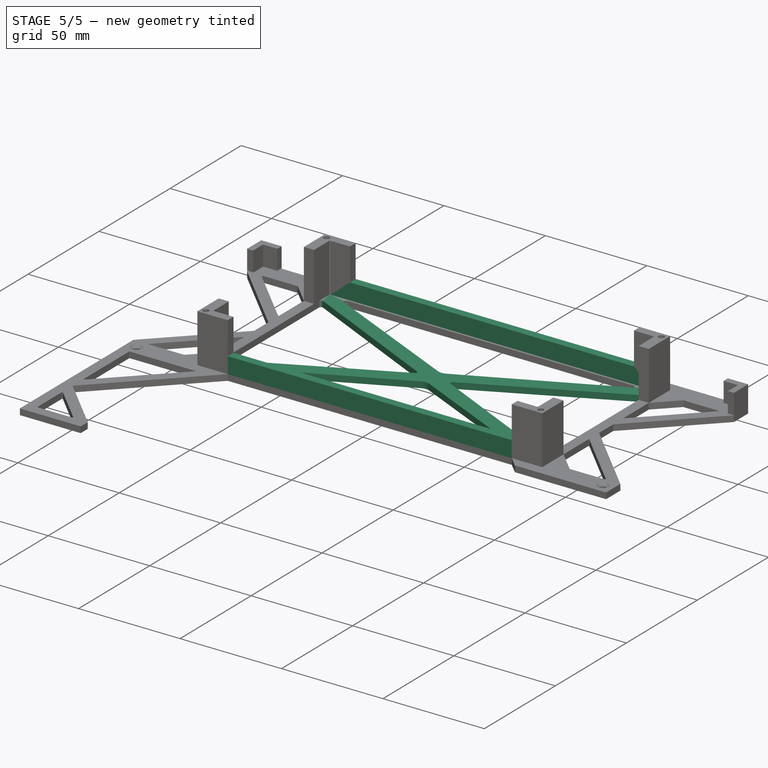
[diagram: stage 5 of 5 — iso view after this stage's code; geometry added in this stage tinted green]
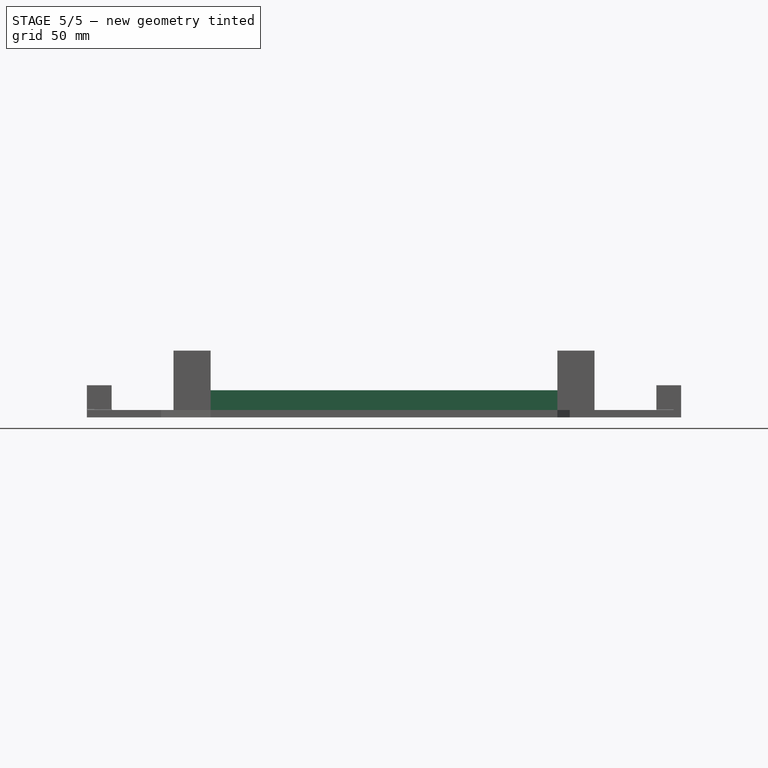
[diagram: stage 5 of 5 — front view after this stage's code; geometry added in this stage tinted green]
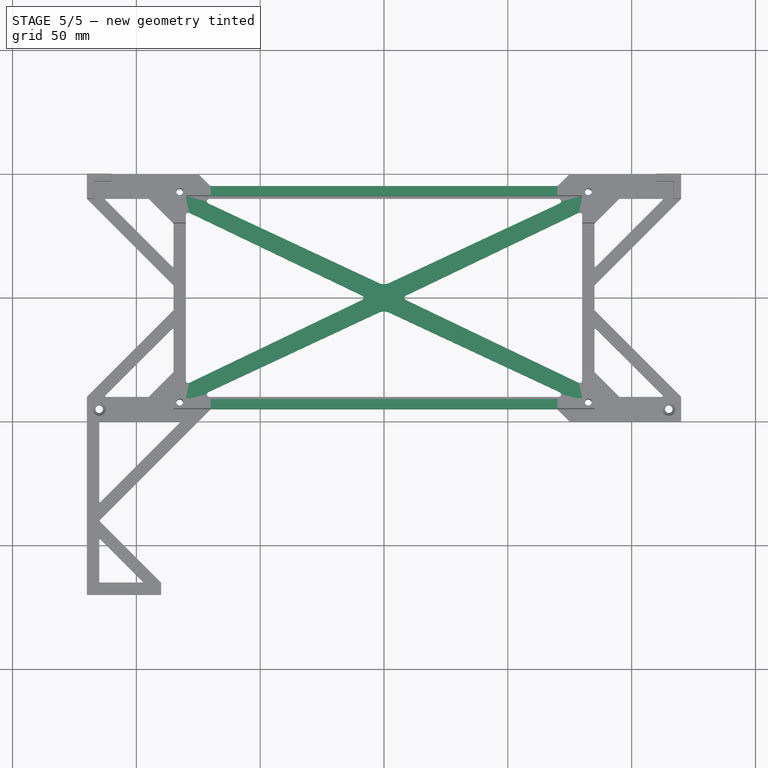
[diagram: stage 5 of 5 — top view after this stage's code; geometry added in this stage tinted green]
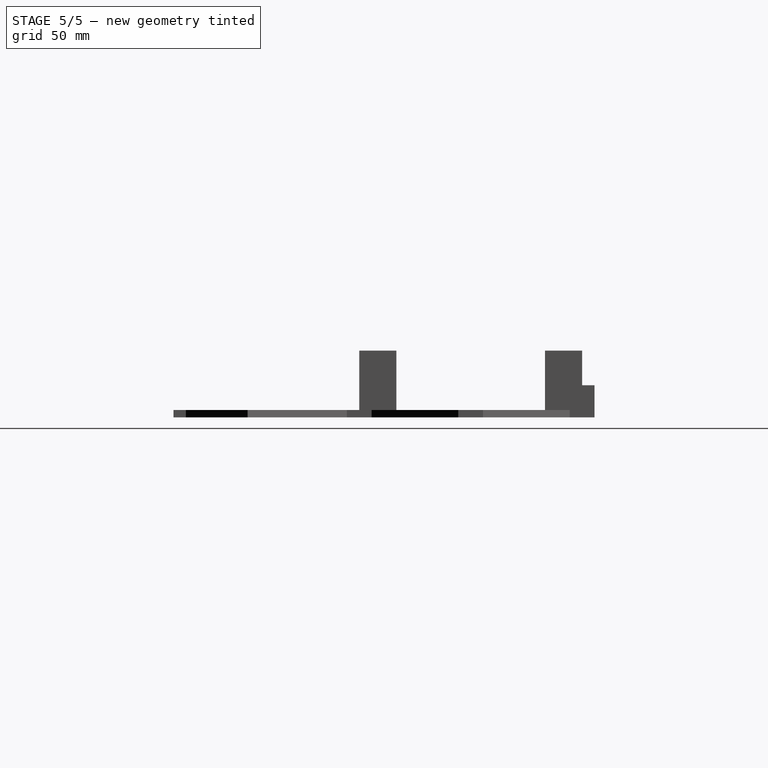
[diagram: stage 5 of 5 — right view after this stage's code; geometry added in this stage tinted green]
FEATURE [Sketcher::SketchObject] Sketch031
  MapMode = 5
  Support = -> [XY_Plane]
  sketch-geometry (16):
    g0: LineSegment StartX=-80 StartY=40 StartZ=0 EndX=-75 EndY=40 EndZ=0
    g1: LineSegment StartX=-75 StartY=40 StartZ=0 EndX=0 EndY=5 EndZ=0
    g2: LineSegment StartX=0 StartY=5 StartZ=0 EndX=75 EndY=40 EndZ=0
    g3: LineSegment StartX=75 StartY=40 StartZ=0 EndX=80 EndY=40 EndZ=0
    g4: LineSegment StartX=80 StartY=40 StartZ=0 EndX=80 EndY=35 EndZ=0
    g5: LineSegment StartX=80 StartY=35 StartZ=0 EndX=7 EndY=0 EndZ=0
    g6: LineSegment StartX=7 StartY=0 StartZ=0 EndX=80 EndY=-35 EndZ=0
    g7: LineSegment StartX=80 StartY=-35 StartZ=0 EndX=80 EndY=-40 EndZ=0
    g8: LineSegment StartX=80 StartY=-40 StartZ=0 EndX=75 EndY=-40 EndZ=0
    g9: LineSegment StartX=75 StartY=-40 StartZ=0 EndX=0 EndY=-5 EndZ=0
    g10: LineSegment StartX=0 StartY=-5 StartZ=0 EndX=-75 EndY=-40 EndZ=0
    g11: LineSegment StartX=-75 StartY=-40 StartZ=0 EndX=-80 EndY=-40 EndZ=0
    g12: LineSegment StartX=-80 StartY=-40 StartZ=0 EndX=-80 EndY=-35 EndZ=0
    g13: LineSegment StartX=-80 StartY=-35 StartZ=0 EndX=-7 EndY=0 EndZ=0
    g14: LineSegment StartX=-7 StartY=0 StartZ=0 EndX=-80 EndY=35 EndZ=0
    g15: LineSegment StartX=-80 StartY=35 StartZ=0 EndX=-80 EndY=40 EndZ=0
  constraints (48):
    c: Coincident(g0,g1)
    c: Coincident(g1,g2)
    c: Coincident(g2,g3)
    c: Coincident(g3,g4)
    c: Coincident(g4,g5)
    c: Coincident(g5,g6)
    c: Coincident(g6,g7)
    c: Coincident(g7,g8)
    c: Coincident(g8,g9)
    c: Coincident(g9,g10)
    c: Coincident(g10,g11)
    c: Coincident(g11,g12)
    c: Coincident(g12,g13)
    c: Coincident(g13,g14)
    c: Coincident(g14,g15)
    c: Coincident(g15,g0)
    c: DistanceX(g0,g-1) = 80
    c: Horizontal(g0)
    c: Horizontal(g11)
    c: Horizontal(g3)
    c: Horizontal(g8)
    c: Vertical(g15)
    c: Vertical(g12)
    c: Vertical(g7)
    c: Vertical(g4)
    c: DistanceX(g-1,g3) = 80
    c: DistanceX(g-1,g7) = 80
    c: DistanceX(g11,g-1) = 80
    c: DistanceY(g-1,g3) = 40
    c: DistanceY(g7,g-1) = 40
    c: DistanceY(g11,g-1) = 40
    c: DistanceY(g11,g12) = 5
    c: DistanceY(g9,g-1) = 5
    c: DistanceY(g14,g0) = 5
    c: DistanceY(g-1,g1) = 5
    c: DistanceY(g4,g3) = 5
    c: DistanceY(g7,g6) = 5
    c: DistanceX(g0,g0) = 5
    c: DistanceX(g11,g10) = 5
    c: DistanceX(g8,g7) = 5
    c: DistanceX(g2,g3) = 5
    c: DistanceX(g-1,g5) = 7
    c: DistanceX(g13,g-1) = 7
    c: DistanceY(g-1,g0) = 40
    c: PointOnObject(g1,g-2)
    c: PointOnObject(g9,g-2)
    c: PointOnObject(g13,g-1)
    c: PointOnObject(g5,g-1)
FEATURE [PartDesign::Pad] Pad012
  BaseFeature = -> Pocket007
  Length = 3
  Length2 = 100
  Profile = -> Sketch031
  Refine = true
  Type = 0
FEATURE [Sketcher::SketchObject] Sketch032
  MapMode = 5
  Placement = pos=(0,0,3) rot=(0,0,1;0rad)
  Support = -> [Pad012]
  sketch-geometry (8):
    g0: LineSegment StartX=-70 StartY=45 StartZ=0 EndX=70 EndY=45 EndZ=0
    g1: LineSegment StartX=70 StartY=45 StartZ=0 EndX=70 EndY=41 EndZ=0
    g2: LineSegment StartX=70 StartY=41 StartZ=0 EndX=-70 EndY=41 EndZ=0
    g3: LineSegment StartX=-70 StartY=41 StartZ=0 EndX=-70 EndY=45 EndZ=0
    g4: LineSegment StartX=-70 StartY=-45 StartZ=0 EndX=70 EndY=-45 EndZ=0
    g5: LineSegment StartX=70 StartY=-45 StartZ=0 EndX=70 EndY=-41 EndZ=0
    g6: LineSegment StartX=70 StartY=-41 StartZ=0 EndX=-70 EndY=-41 EndZ=0
    g7: LineSegment StartX=-70 StartY=-41 StartZ=0 EndX=-70 EndY=-45 EndZ=0
  constraints (24):
    c: Coincident(g0,g1)
    c: Coincident(g1,g2)
    c: Coincident(g2,g3)
    c: Coincident(g3,g0)
    c: Horizontal(g0)
    c: Horizontal(g2)
    c: Vertical(g1)
    c: Vertical(g3)
    c: DistanceX(g0,g-1) = 70
    c: DistanceX(g-1,g0) = 70
    c: DistanceY(g1,g0) = 4
    c: DistanceY(g-1,g0) = 45
    c: Coincident(g4,g5)
    c: Coincident(g5,g6)
    c: Coincident(g6,g7)
    c: Coincident(g7,g4)
    c: Horizontal(g4)
    c: Horizontal(g6)
    c: Vertical(g5)
    c: Vertical(g7)
    c: DistanceX(g-1,g5) = 70
    c: DistanceX(g6,g-1) = 70
    c: DistanceY(g4,g-1) = 45
    c: DistanceY(g4,g5) = 4
FEATURE [PartDesign::Pad] Pad013
  BaseFeature = -> Pad012
  Length = 8
  Length2 = 100
  Profile = -> Sketch032
  Refine = true
  Type = 0
FEATURE [PartDesign::Fillet] Fillet010
  Base = -> Pad013 [Edge159,Edge165]
  BaseFeature = -> Pad013
  Radius = 5
FEATURE [PartDesign::Fillet] Fillet011
  Base = -> Fillet010 [Edge168,Edge182]
  BaseFeature = -> Fillet010
  Radius = 1
FEATURE [PartDesign::Fillet] Fillet012
  Base = -> Fillet011 [Edge270,Edge267,Edge277,Edge100,Edge105,Edge84,Edge88,Edge262]
  BaseFeature = -> Fillet011
  Radius = 1
FEATURE [PartDesign::Fillet] Fillet013
  Base = -> Fillet012 [Edge303,Edge304,Edge103,Edge104]
  BaseFeature = -> Fillet012
  Radius = 0.5
FEATURE [PartDesign::Fillet] Fillet014
  Base = -> Fillet013 [Edge324]
  BaseFeature = -> Fillet013
  Radius = 1
FEATURE [PartDesign::Fillet] Fillet015
  Base = -> Fillet014 [Edge319]
  BaseFeature = -> Fillet014
  Radius = 0.5
FEATURE [PartDesign::Fillet] Fillet016
  Base = -> Fillet015 [Edge13]
  BaseFeature = -> Fillet015
  Radius = 0.5
FEATURE [PartDesign::Body] Body001  label="Frame"
  Group = -> [Sketch003,Pad,Sketch005,Pad001,Sketch007,Pad002,Sketch008,Pad003,Sketch009,Pad004,Sketch011,Pad005,Sketch012,Pad006,Sketch013,Pad007,Sketch014,Hole,Sketch015,Hole001,Sketch016,Hole002,Sketch017,Hole003,Fillet,Fillet001,Fillet002,Fillet003,Fillet004,Fillet005,Fillet006,Fillet007,Fillet008,Fillet009,Sketch018,Pad008,Sketch019,Pad009,Sketch020,Pad010,Sketch021,Pad011,Sketch023,Pocket,Sketch024,+25 more]
  Origin = -> Origin
  Tip = -> Fillet016
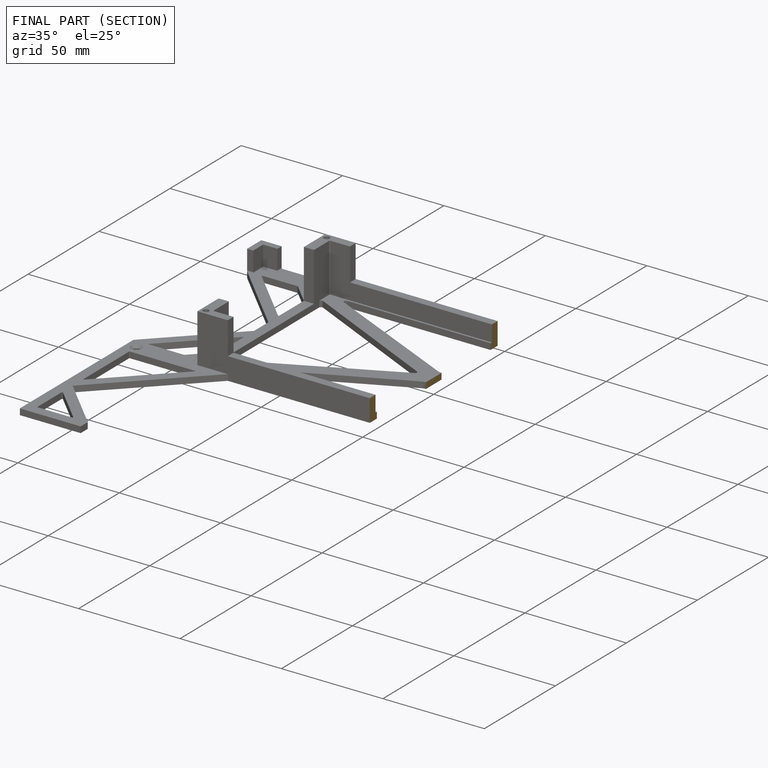
[diagram: finished part — half-section view (interior)]
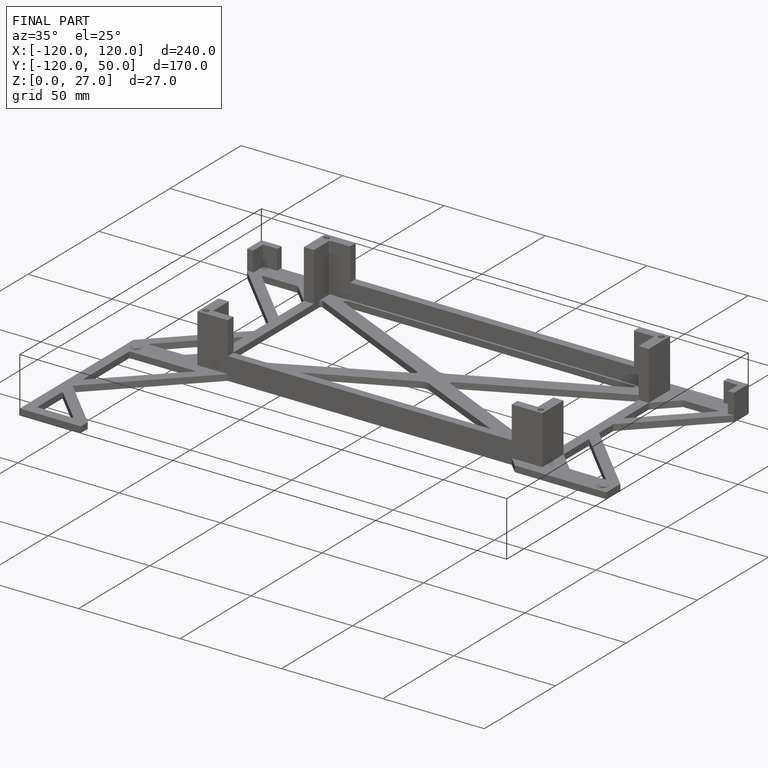
[diagram: finished part — iso view with bounding-box wireframe]
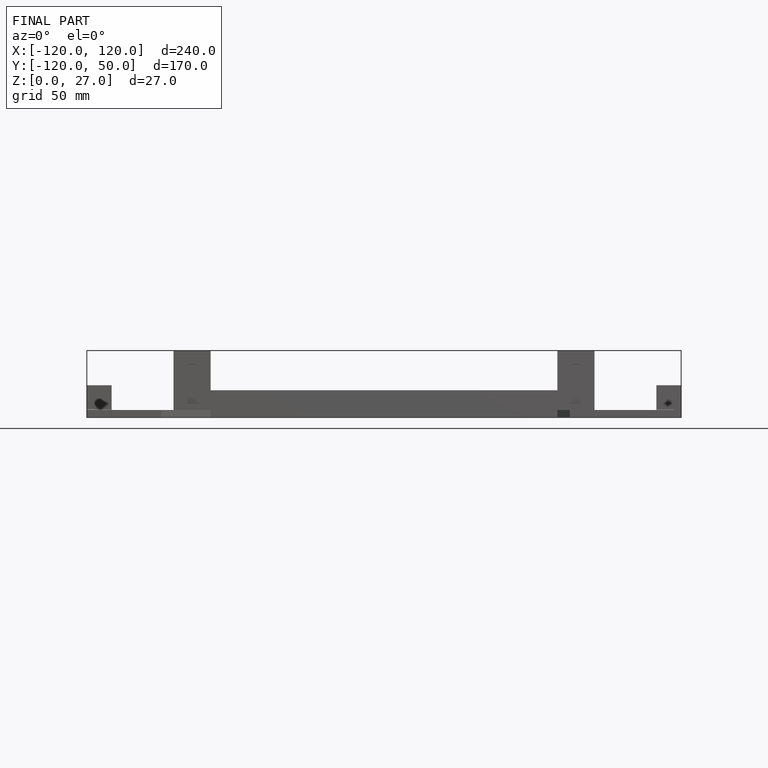
[diagram: finished part — front view with bounding-box wireframe]
